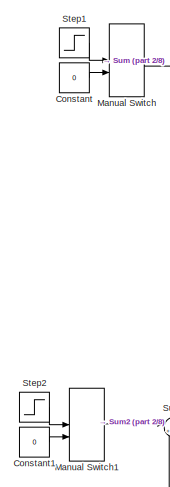
[diagram: root canvas - part 1/8, top left region]
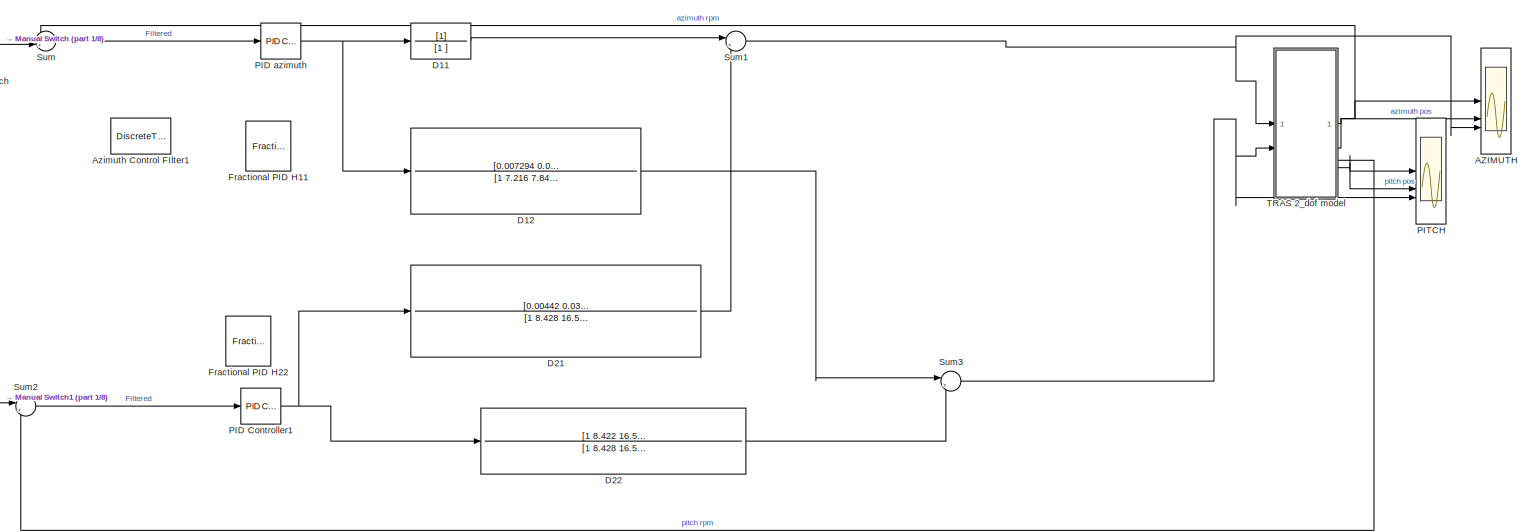
[diagram: root canvas - part 2/8, top left region]
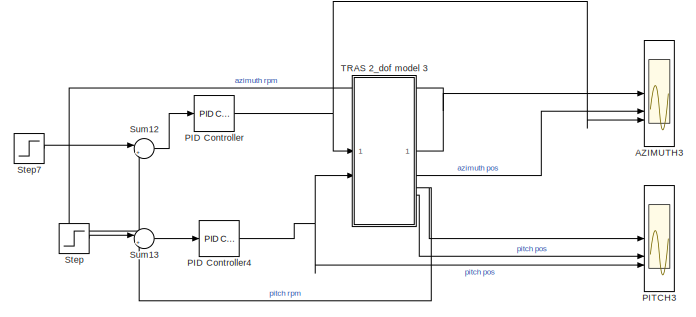
[diagram: root canvas - part 3/8, top right region]
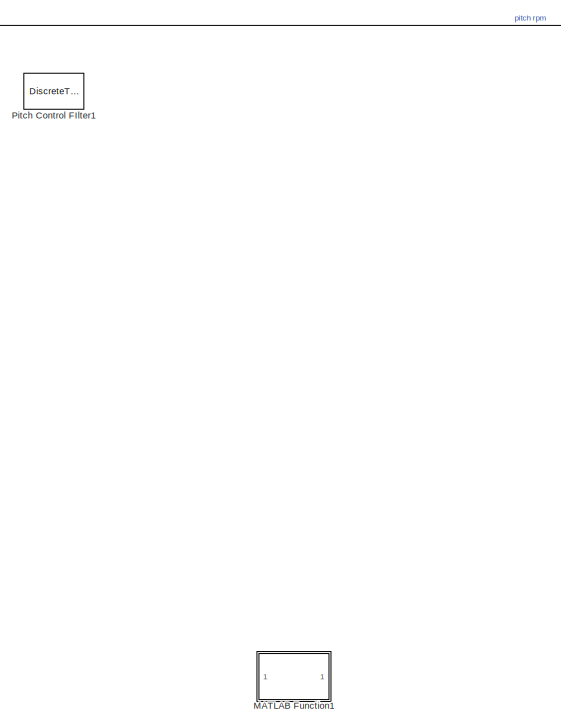
[diagram: root canvas - part 4/8, top left region]
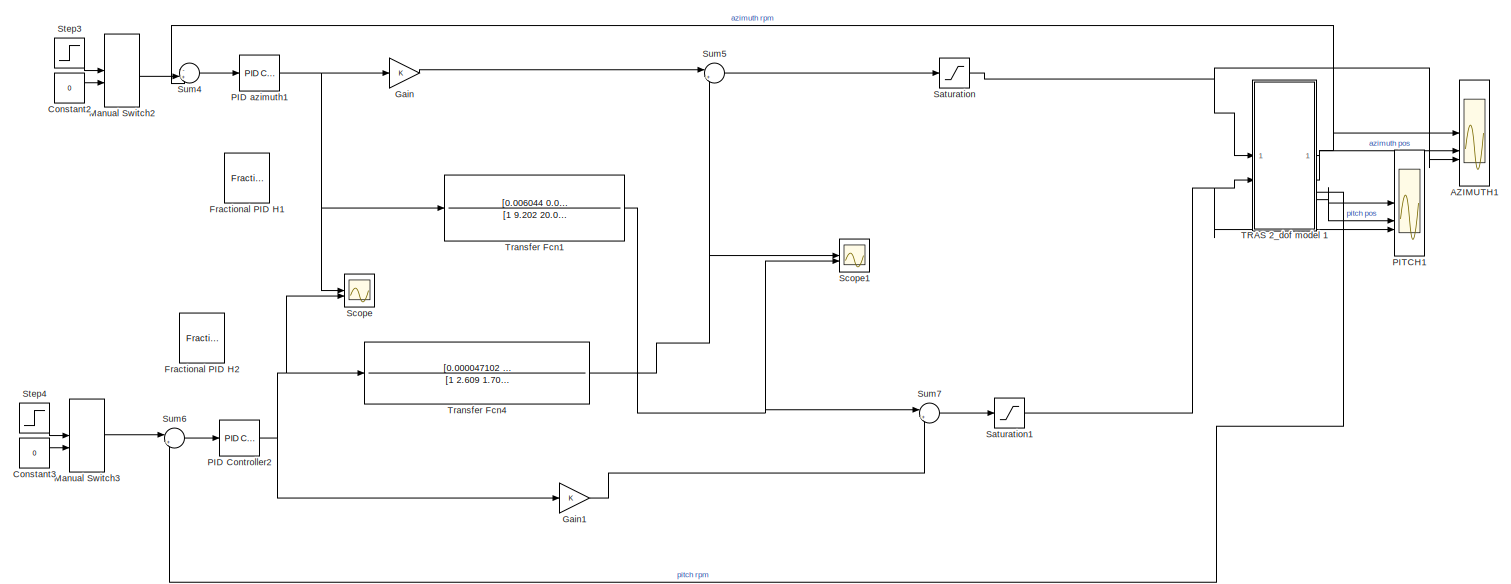
[diagram: root canvas - part 5/8, middle left region]
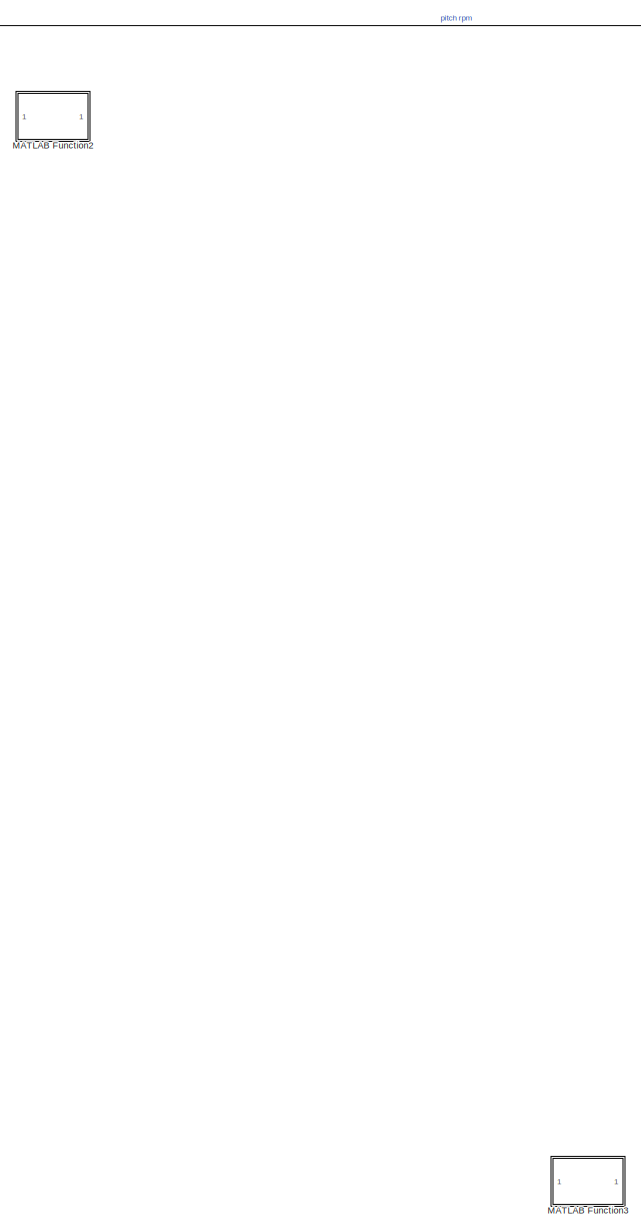
[diagram: root canvas - part 6/8, middle left region]
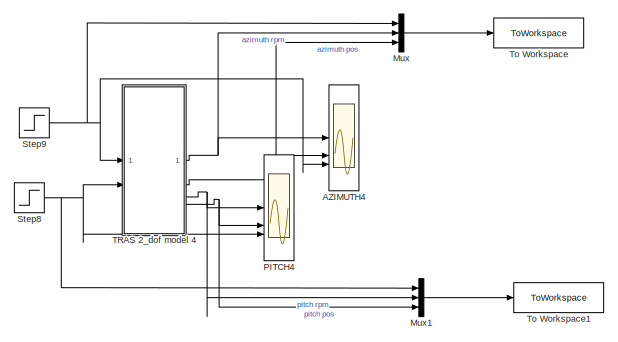
[diagram: root canvas - part 7/8, bottom right region]
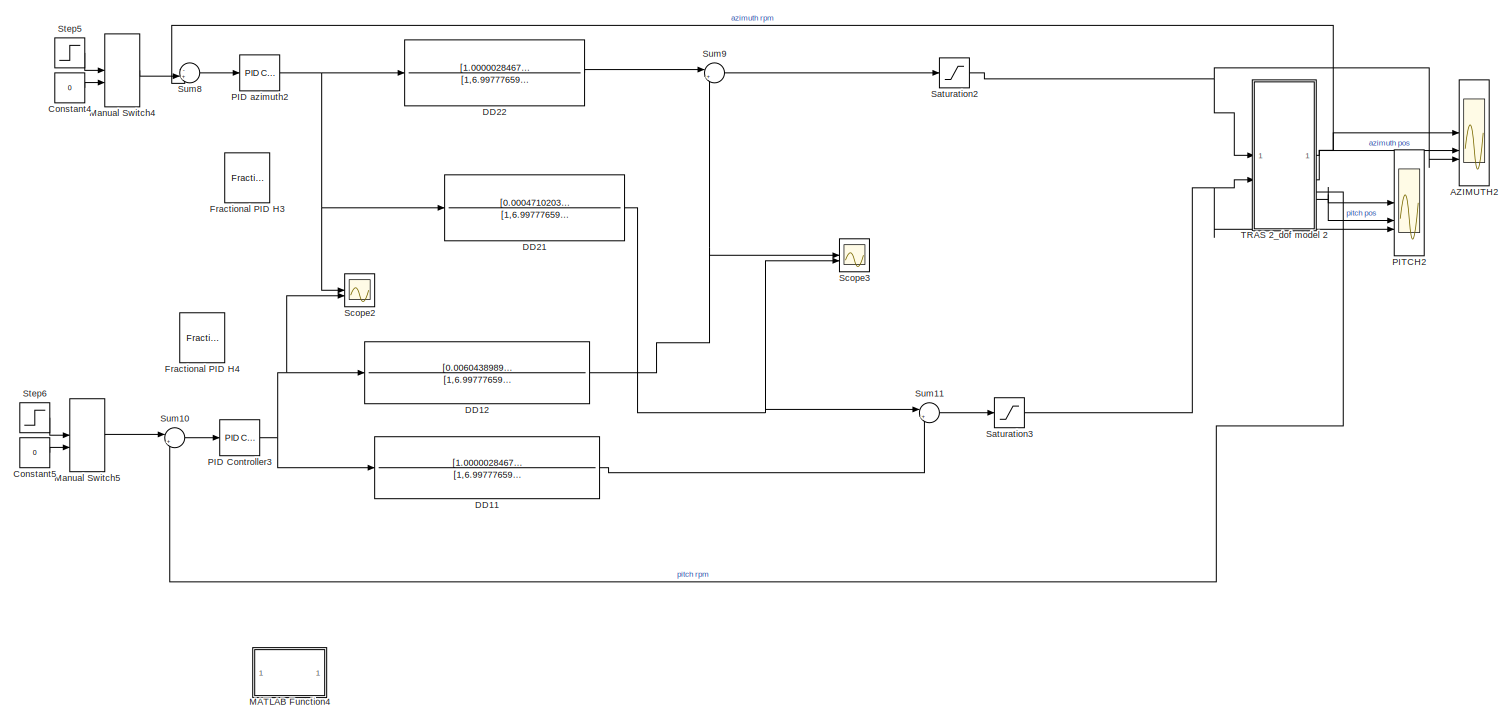
[diagram: root canvas - part 8/8, bottom left region]
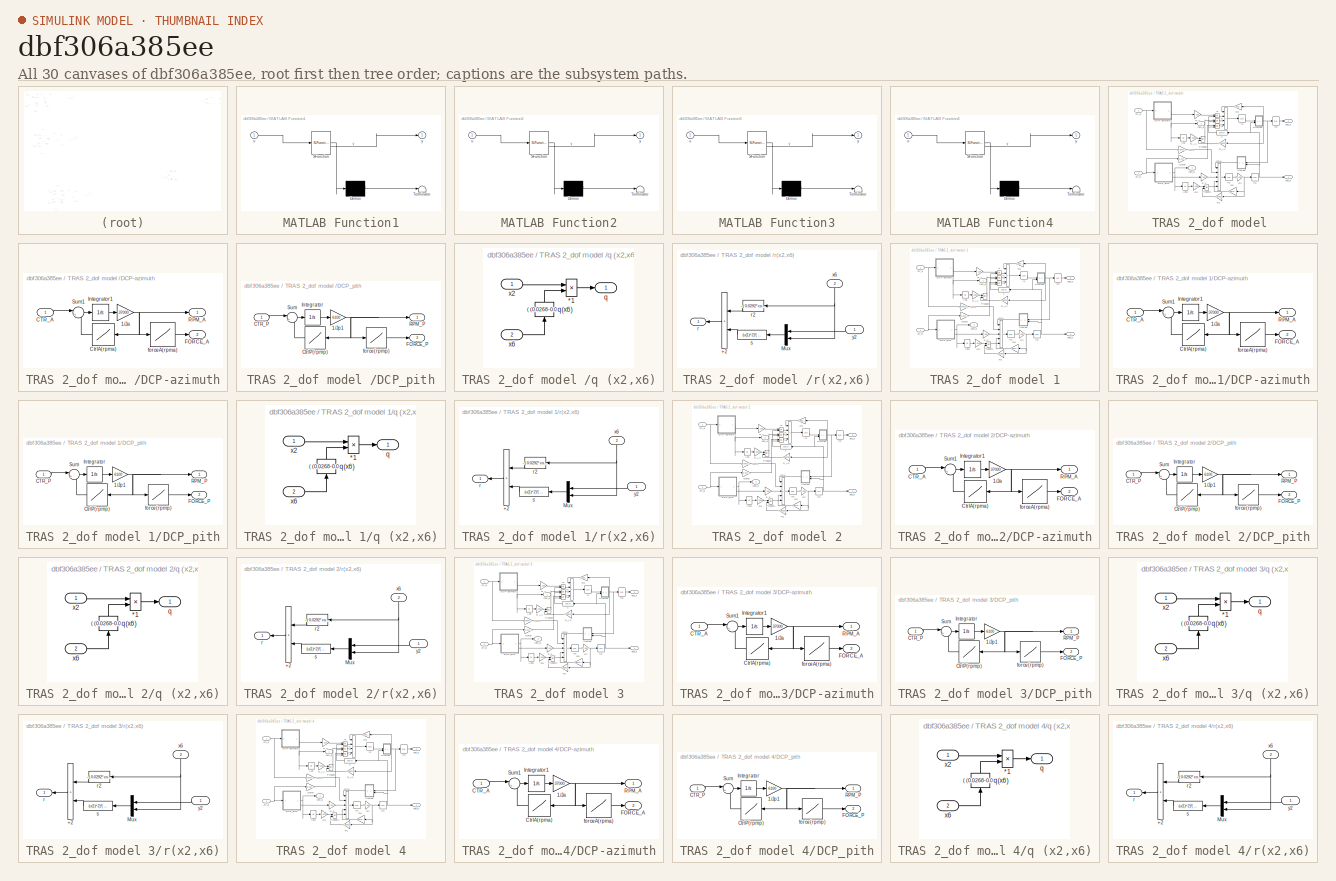
[diagram: thumbnail index - all 30 canvases of the model, root first then tree order]
MODEL mdl_dbf306a385ee
KIND model
CONFIG AbsTol = auto
CONFIG EnableMultiTasking = on
CONFIG FixedStep = .02
CONFIG MaxStep = auto
CONFIG MinStep = auto
CONFIG PreLoadFcn = load tras_char
CONFIG RelTol = 1e-3
CONFIG SampleTimeConstraint = Unconstrained
CONFIG SolverName = VariableStepAuto
CONFIG StartTime = 0.0
CONFIG StopTime = 20
BLOCK [Scope] AZIMUTH
  Floating = off
  NumInputPorts = 3
  ScopeSpecificationString = Simulink.scopes.TimeScopeBlockCfg('CurrentConfiguration', extmgr.ConfigurationSet(extmgr.Configuration('Core','General UI',true),extmgr.Configuration('Core','Source UI',true),extmgr.Configuration('Sources','WiredSimulink',true,'DataLoggingSaveFormat','StructureWithTime','DataLoggingLimitDataPoints',true,'DataLoggingDecimation','1','DataLoggingDecimateData',true),extmgr.Configuration('Visuals','Tim...<+3344ch>
BLOCK [Scope] AZIMUTH1
  Floating = off
  NumInputPorts = 3
  ScopeSpecificationString = Simulink.scopes.TimeScopeBlockCfg('CurrentConfiguration', extmgr.ConfigurationSet(extmgr.Configuration('Core','General UI',true),extmgr.Configuration('Core','Source UI',true),extmgr.Configuration('Sources','WiredSimulink',true,'DataLoggingSaveFormat','StructureWithTime','DataLoggingLimitDataPoints',true,'DataLoggingDecimation','1','DataLoggingDecimateData',true,'DataLoggingVariableName','ScopeData...<+3386ch>
BLOCK [Scope] AZIMUTH2
  Floating = off
  NumInputPorts = 3
  ScopeSpecificationString = Simulink.scopes.TimeScopeBlockCfg('CurrentConfiguration', extmgr.ConfigurationSet(extmgr.Configuration('Core','General UI',true),extmgr.Configuration('Core','Source UI',true),extmgr.Configuration('Sources','WiredSimulink',true,'DataLoggingSaveFormat','StructureWithTime','DataLoggingLimitDataPoints',true,'DataLoggingDecimation','1','DataLoggingDecimateData',true,'DataLoggingVariableName','ScopeData...<+3384ch>
BLOCK [Scope] AZIMUTH3
  Floating = off
  NumInputPorts = 3
  ScopeSpecificationString = Simulink.scopes.TimeScopeBlockCfg('CurrentConfiguration', extmgr.ConfigurationSet(extmgr.Configuration('Core','General UI',true),extmgr.Configuration('Core','Source UI',true),extmgr.Configuration('Sources','WiredSimulink',true,'DataLoggingSaveFormat','StructureWithTime','DataLoggingLimitDataPoints',true,'DataLoggingDecimation','1','DataLoggingDecimateData',true,'DataLoggingVariableName','ScopeData...<+3383ch>
BLOCK [Scope] AZIMUTH4
  Floating = off
  NumInputPorts = 3
  ScopeSpecificationString = Simulink.scopes.TimeScopeBlockCfg('CurrentConfiguration', extmgr.ConfigurationSet(extmgr.Configuration('Core','General UI',true),extmgr.Configuration('Core','Source UI',true),extmgr.Configuration('Sources','WiredSimulink',true,'DataLoggingSaveFormat','StructureWithTime','DataLoggingLimitDataPoints',true,'DataLoggingDecimation','1','DataLoggingDecimateData',true,'DataLoggingVariableName','ScopeData...<+3373ch>
BLOCK [DiscreteTransferFcn] Azimuth Control FIlter1
  Denominator = [1.0000   -3.9845    6.4349   -5.2536    2.1651   -0.3599]*1e6
  InputPortMap = u0
  Numerator = [0.0598    0.2990    0.5980    0.5980    0.2990    0.0598] * 1e3
  SampleTime = 0.01
BLOCK [Constant] Constant
  Value = 0
BLOCK [Constant] Constant1
  Value = 0
BLOCK [Constant] Constant2
  Value = 0
BLOCK [Constant] Constant3
  Value = 0
BLOCK [Constant] Constant4
  Value = 0
BLOCK [Constant] Constant5
  Value = 0
BLOCK [TransferFcn] D11
  Denominator = [1 ]
BLOCK [TransferFcn] D12
  Denominator = [1 7.216 7.843]
  Numerator = [0.007294 0.0517 0.0517]
BLOCK [TransferFcn] D21
  Denominator = [1 8.428 16.59 9.507]
  Numerator = [0.00442 0.03131 0.05809 0.03227]
BLOCK [TransferFcn] D22
  Denominator = [1 8.428 16.59 9.507]
  Numerator = [1 8.422 16.54 9.451]
BLOCK [TransferFcn] DD11
  Denominator = [1,6.99777659725802,7.50512468468497]
  Numerator = [1.00000284679131,6.99779030125994,7.50513760323875]
BLOCK [TransferFcn] DD12
  Denominator = [1,6.99777659725803,7.50512468468505]
  Numerator = [0.00604389897710873,0.0157679645959730,0.0102823375259034]
BLOCK [TransferFcn] DD21
  Denominator = [1,6.99777659725802,7.50512468468497]
  Numerator = [0.000471020349710704,0.00433466168519442,0.00942932713768640]
BLOCK [TransferFcn] DD22
  Denominator = [1,6.99777659725803,7.50512468468505]
  Numerator = [1.00000284679131,6.99779030126001,7.50513760323899]
BLOCK [Reference] Fractional PID H1  REF=fod/Fractional PID  (lib defined in slx_5cb2d42c7bef)
controller
  SourceBlock = fod/Fractional PID\ncontroller
  SourceProductName = FOMCON Toolbox
  SourceType = Fractional PID
BLOCK [Reference] Fractional PID H11  REF=fod/Fractional PID  (lib defined in slx_5cb2d42c7bef)
controller
  SourceBlock = fod/Fractional PID\ncontroller
  SourceProductName = FOMCON Toolbox
  SourceType = Fractional PID
BLOCK [Reference] Fractional PID H2  REF=fod/Fractional PID  (lib defined in slx_5cb2d42c7bef)
controller
  SourceBlock = fod/Fractional PID\ncontroller
  SourceProductName = FOMCON Toolbox
  SourceType = Fractional PID
BLOCK [Reference] Fractional PID H22  REF=fod/Fractional PID  (lib defined in slx_5cb2d42c7bef)
controller
  SourceBlock = fod/Fractional PID\ncontroller
  SourceProductName = FOMCON Toolbox
  SourceType = Fractional PID
BLOCK [Reference] Fractional PID H3  REF=fod/Fractional PID  (lib defined in slx_5cb2d42c7bef)
controller
  SourceBlock = fod/Fractional PID\ncontroller
  SourceProductName = FOMCON Toolbox
  SourceType = Fractional PID
BLOCK [Reference] Fractional PID H4  REF=fod/Fractional PID  (lib defined in slx_5cb2d42c7bef)
controller
  SourceBlock = fod/Fractional PID\ncontroller
  SourceProductName = FOMCON Toolbox
  SourceType = Fractional PID
BLOCK [Gain] Gain
BLOCK [Gain] Gain1
BLOCK [SubSystem] MATLAB Function1
  ErrorFcn = Stateflow.Translate.translate
  NameLocation = top
  PermitHierarchicalResolution = ExplicitOnly
  SFBlockType = MATLAB Function
  TreatAsAtomicUnit = on
BLOCK [Demux] MATLAB Function1/ Demux 
  Outputs = 1
BLOCK [S-Function] MATLAB Function1/ SFunction 
  EnableBusSupport = on
  FunctionName = sf_sfun
  PortCounts = [1 2]
  SFcnIsStateOwnerBlock = off
  SFunctionDeploymentMode = off
  Tag = Stateflow S-Function 1
BLOCK [Terminator] MATLAB Function1/ Terminator 
BLOCK [Inport] MATLAB Function1/u
BLOCK [Outport] MATLAB Function1/y
BLOCK [SubSystem] MATLAB Function2
  ErrorFcn = Stateflow.Translate.translate
  NameLocation = top
  PermitHierarchicalResolution = ExplicitOnly
  SFBlockType = MATLAB Function
  TreatAsAtomicUnit = on
BLOCK [Demux] MATLAB Function2/ Demux 
  Outputs = 1
BLOCK [S-Function] MATLAB Function2/ SFunction 
  EnableBusSupport = on
  FunctionName = sf_sfun
  PortCounts = [1 2]
  SFcnIsStateOwnerBlock = off
  SFunctionDeploymentMode = off
  Tag = Stateflow S-Function 3
BLOCK [Terminator] MATLAB Function2/ Terminator 
BLOCK [Inport] MATLAB Function2/u
BLOCK [Outport] MATLAB Function2/y
BLOCK [SubSystem] MATLAB Function3
  ErrorFcn = Stateflow.Translate.translate
  NameLocation = top
  PermitHierarchicalResolution = ExplicitOnly
  SFBlockType = MATLAB Function
  TreatAsAtomicUnit = on
BLOCK [Demux] MATLAB Function3/ Demux 
  Outputs = 1
BLOCK [S-Function] MATLAB Function3/ SFunction 
  EnableBusSupport = on
  FunctionName = sf_sfun
  PortCounts = [1 2]
  SFcnIsStateOwnerBlock = off
  SFunctionDeploymentMode = off
  Tag = Stateflow S-Function 2
BLOCK [Terminator] MATLAB Function3/ Terminator 
BLOCK [Inport] MATLAB Function3/u
BLOCK [Outport] MATLAB Function3/y
BLOCK [SubSystem] MATLAB Function4
  ErrorFcn = Stateflow.Translate.translate
  NameLocation = top
  PermitHierarchicalResolution = ExplicitOnly
  SFBlockType = MATLAB Function
  TreatAsAtomicUnit = on
BLOCK [Demux] MATLAB Function4/ Demux 
  Outputs = 1
BLOCK [S-Function] MATLAB Function4/ SFunction 
  EnableBusSupport = on
  FunctionName = sf_sfun
  PortCounts = [1 2]
  SFcnIsStateOwnerBlock = off
  SFunctionDeploymentMode = off
  Tag = Stateflow S-Function 4
BLOCK [Terminator] MATLAB Function4/ Terminator 
BLOCK [Inport] MATLAB Function4/u
BLOCK [Outport] MATLAB Function4/y
BLOCK [ManualSwitch] Manual Switch
  CurrentSetting = 0
BLOCK [ManualSwitch] Manual Switch1
BLOCK [ManualSwitch] Manual Switch2
BLOCK [ManualSwitch] Manual Switch3
  CurrentSetting = 0
BLOCK [ManualSwitch] Manual Switch4
  CurrentSetting = 0
BLOCK [ManualSwitch] Manual Switch5
BLOCK [Mux] Mux
  DisplayOption = bar
  Inputs = 3
BLOCK [Mux] Mux1
  DisplayOption = bar
  Inputs = 3
BLOCK [Reference] PID Controller  REF=slpidlib/PID Controller
  LibrarySourceBlock = simulink/Continuous/PID Controller
  SourceBlock = slpidlib/PID Controller
  SourceType = PID 1dof
BLOCK [Reference] PID Controller1  REF=slpidlib/PID Controller
  LibrarySourceBlock = simulink/Continuous/PID Controller
  SourceBlock = slpidlib/PID Controller
  SourceType = PID 1dof
BLOCK [Reference] PID Controller2  REF=slpidlib/PID Controller
  LibrarySourceBlock = simulink/Continuous/PID Controller
  SourceBlock = slpidlib/PID Controller
  SourceType = PID 1dof
BLOCK [Reference] PID Controller3  REF=slpidlib/PID Controller
  LibrarySourceBlock = simulink/Continuous/PID Controller
  SourceBlock = slpidlib/PID Controller
  SourceType = PID 1dof
BLOCK [Reference] PID Controller4  REF=slpidlib/PID Controller
  LibrarySourceBlock = simulink/Continuous/PID Controller
  SourceBlock = slpidlib/PID Controller
  SourceType = PID 1dof
BLOCK [Reference] PID azimuth  REF=slpidlib/PID Controller
  LibrarySourceBlock = simulink/Continuous/PID Controller
  SourceBlock = slpidlib/PID Controller
  SourceType = PID 1dof
BLOCK [Reference] PID azimuth1  REF=slpidlib/PID Controller
  LibrarySourceBlock = simulink/Continuous/PID Controller
  SourceBlock = slpidlib/PID Controller
  SourceType = PID 1dof
BLOCK [Reference] PID azimuth2  REF=slpidlib/PID Controller
  LibrarySourceBlock = simulink/Continuous/PID Controller
  SourceBlock = slpidlib/PID Controller
  SourceType = PID 1dof
BLOCK [Scope] PITCH
  Floating = off
  NumInputPorts = 3
  ScopeSpecificationString = Simulink.scopes.TimeScopeBlockCfg('CurrentConfiguration', extmgr.ConfigurationSet(extmgr.Configuration('Core','General UI',true),extmgr.Configuration('Core','Source UI',true),extmgr.Configuration('Sources','WiredSimulink',true,'DataLoggingVariableName','ScopeData1','DataLoggingSaveFormat','StructureWithTime','DataLoggingLimitDataPoints',true,'DataLoggingDecimation','1','DataLoggingDecimateData',tr...<+3369ch>
BLOCK [Scope] PITCH1
  Floating = off
  NumInputPorts = 3
  ScopeSpecificationString = Simulink.scopes.TimeScopeBlockCfg('CurrentConfiguration', extmgr.ConfigurationSet(extmgr.Configuration('Core','General UI',true),extmgr.Configuration('Core','Source UI',true),extmgr.Configuration('Sources','WiredSimulink',true,'DataLoggingVariableName','ScopeData3','DataLoggingSaveFormat','StructureWithTime','DataLoggingLimitDataPoints',true,'DataLoggingDecimation','1','DataLoggingDecimateData',tr...<+3296ch>
BLOCK [Scope] PITCH2
  Floating = off
  NumInputPorts = 3
  ScopeSpecificationString = Simulink.scopes.TimeScopeBlockCfg('CurrentConfiguration', extmgr.ConfigurationSet(extmgr.Configuration('Core','General UI',true),extmgr.Configuration('Core','Source UI',true),extmgr.Configuration('Sources','WiredSimulink',true,'DataLoggingVariableName','ScopeData2','DataLoggingSaveFormat','StructureWithTime','DataLoggingLimitDataPoints',true,'DataLoggingDecimation','1','DataLoggingDecimateData',tr...<+3262ch>
BLOCK [Scope] PITCH3
  Floating = off
  NumInputPorts = 3
  ScopeSpecificationString = Simulink.scopes.TimeScopeBlockCfg('CurrentConfiguration', extmgr.ConfigurationSet(extmgr.Configuration('Core','General UI',true),extmgr.Configuration('Core','Source UI',true),extmgr.Configuration('Sources','WiredSimulink',true,'DataLoggingVariableName','ScopeData6','DataLoggingSaveFormat','StructureWithTime','DataLoggingLimitDataPoints',true,'DataLoggingDecimation','1','DataLoggingDecimateData',tr...<+3262ch>
BLOCK [Scope] PITCH4
  Floating = off
  NumInputPorts = 3
  ScopeSpecificationString = Simulink.scopes.TimeScopeBlockCfg('CurrentConfiguration', extmgr.ConfigurationSet(extmgr.Configuration('Core','General UI',true),extmgr.Configuration('Core','Source UI',true),extmgr.Configuration('Sources','WiredSimulink',true,'DataLoggingVariableName','ScopeData2','DataLoggingSaveFormat','StructureWithTime','DataLoggingLimitDataPoints',true,'DataLoggingDecimation','1','DataLoggingDecimateData',tr...<+3255ch>
BLOCK [DiscreteTransferFcn] Pitch Control FIlter1
  Denominator = [1.0000   -3.9845    6.4349   -5.2536    2.1651   -0.3599]*1e6
  InputPortMap = u0
  Numerator = [0.0598    0.2990    0.5980    0.5980    0.2990    0.0598] * 1e3
  SampleTime = 0.01
BLOCK [Saturate] Saturation
  LowerLimit = -0.2
  UpperLimit = 1
BLOCK [Saturate] Saturation1
BLOCK [Saturate] Saturation2
  LowerLimit = -0.2
  UpperLimit = 1
BLOCK [Saturate] Saturation3
BLOCK [Scope] Scope
  Floating = off
  NumInputPorts = 2
  ScopeSpecificationString = Simulink.scopes.TimeScopeBlockCfg('CurrentConfiguration', extmgr.ConfigurationSet(extmgr.Configuration('Core','General UI',true),extmgr.Configuration('Core','Source UI',true),extmgr.Configuration('Sources','WiredSimulink',true,'DataLoggingVariableName','ScopeData4'),extmgr.Configuration('Visuals','Time Domain',true,'SerializedDisplays',{struct('MinYLimReal','0.001239','MaxYLimReal','0.001316','YLa...<+2151ch>
BLOCK [Scope] Scope1
  Floating = off
  NumInputPorts = 2
  ScopeSpecificationString = Simulink.scopes.TimeScopeBlockCfg('CurrentConfiguration', extmgr.ConfigurationSet(extmgr.Configuration('Core','General UI',true),extmgr.Configuration('Core','Source UI',true),extmgr.Configuration('Sources','WiredSimulink',true,'DataLoggingVariableName','ScopeData5'),extmgr.Configuration('Visuals','Time Domain',true,'SerializedDisplays',{struct('MinYLimReal','-0.00006','MaxYLimReal','0.00058','YLab...<+2174ch>
BLOCK [Scope] Scope2
  Floating = off
  NumInputPorts = 2
  ScopeSpecificationString = Simulink.scopes.TimeScopeBlockCfg('CurrentConfiguration', extmgr.ConfigurationSet(extmgr.Configuration('Core','General UI',true),extmgr.Configuration('Core','Source UI',true),extmgr.Configuration('Sources','WiredSimulink',true,'DataLoggingVariableName','ScopeData3'),extmgr.Configuration('Visuals','Time Domain',true,'SerializedDisplays',{struct('MinYLimReal','0.001239','MaxYLimReal','0.001316','YLa...<+2124ch>
BLOCK [Scope] Scope3
  Floating = off
  NumInputPorts = 2
  ScopeSpecificationString = Simulink.scopes.TimeScopeBlockCfg('CurrentConfiguration', extmgr.ConfigurationSet(extmgr.Configuration('Core','General UI',true),extmgr.Configuration('Core','Source UI',true),extmgr.Configuration('Sources','WiredSimulink',true,'DataLoggingVariableName','ScopeData4'),extmgr.Configuration('Visuals','Time Domain',true,'SerializedDisplays',{struct('MinYLimReal','-0.00006','MaxYLimReal','0.00058','YLab...<+2148ch>
BLOCK [Step] Step
  After = 10
  SampleTime = 0
  Time = 0
BLOCK [Step] Step1
  After = 10
  SampleTime = 0
  Time = 0
BLOCK [Step] Step2
  After = 10
  SampleTime = 0
  Time = 0
BLOCK [Step] Step3
  After = 10
  SampleTime = 0
  Time = 0
BLOCK [Step] Step4
  After = 10
  SampleTime = 0
  Time = 0
BLOCK [Step] Step5
  After = 10
  SampleTime = 0
  Time = 0
BLOCK [Step] Step6
  After = 10
  SampleTime = 0
  Time = 0
BLOCK [Step] Step7
  After = 0
  SampleTime = 0
  Time = 0
BLOCK [Step] Step8
  After = 0.1
  SampleTime = 0
  Time = 0
BLOCK [Step] Step9
  After = 0
  SampleTime = 0
  Time = 0
BLOCK [Sum] Sum
  Inputs = -+|
BLOCK [Sum] Sum1
  Inputs = |++
BLOCK [Sum] Sum10
  Inputs = |+-
BLOCK [Sum] Sum11
  Inputs = |++
BLOCK [Sum] Sum12
  Inputs = |+-
BLOCK [Sum] Sum13
  Inputs = |+-
BLOCK [Sum] Sum2
  Inputs = |+-
BLOCK [Sum] Sum3
  Inputs = |++
BLOCK [Sum] Sum4
  Inputs = -+|
BLOCK [Sum] Sum5
  Inputs = |++
BLOCK [Sum] Sum6
  Inputs = |+-
BLOCK [Sum] Sum7
  Inputs = |++
BLOCK [Sum] Sum8
  Inputs = -+|
BLOCK [Sum] Sum9
  Inputs = |++
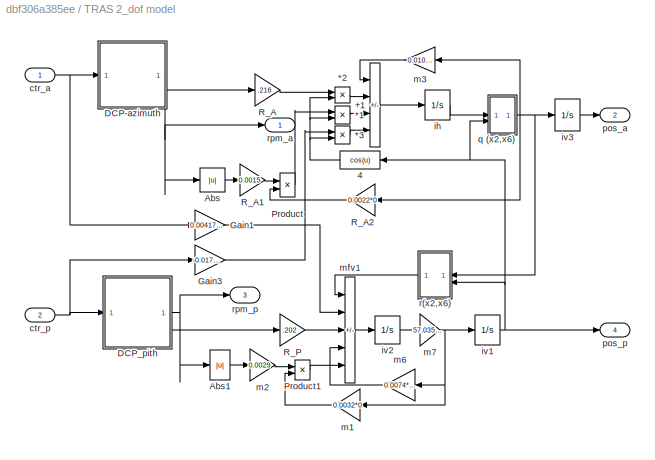
BLOCK [SubSystem] TRAS 2_dof model 
  NameLocation = top
BLOCK [Product] TRAS 2_dof model /*1
  InputSameDT = on
  OutDataTypeStr = Inherit: Same as first input
  SaturateOnIntegerOverflow = on
BLOCK [Product] TRAS 2_dof model /*2
  InputSameDT = on
  OutDataTypeStr = Inherit: Same as first input
  SaturateOnIntegerOverflow = on
BLOCK [Product] TRAS 2_dof model /*3
  InputSameDT = on
  OutDataTypeStr = Inherit: Same as first input
  SaturateOnIntegerOverflow = on
BLOCK [Sum] TRAS 2_dof model /+1
  IconShape = rectangular
  InputSameDT = on
  Inputs = -+--
  NameLocation = top
  OutDataTypeStr = Inherit: Same as first input
  SaturateOnIntegerOverflow = on
BLOCK [Fcn] TRAS 2_dof model /4
  Expr = cos(u)
  NameLocation = top
BLOCK [Abs] TRAS 2_dof model /Abs
BLOCK [Abs] TRAS 2_dof model /Abs1
BLOCK [SubSystem] TRAS 2_dof model /DCP-azimuth
  NameLocation = top
BLOCK [Gain] TRAS 2_dof model /DCP-azimuth/1//Ja
  Gain = 37000
  OutDataTypeStr = Inherit: Same as input
  ParamDataTypeStr = Inherit: Same as input
  SaturateOnIntegerOverflow = on
BLOCK [Inport] TRAS 2_dof model /DCP-azimuth/CTR_A
BLOCK [Lookup] TRAS 2_dof model /DCP-azimuth/CtrlA(rpma)
  InputValues = rpm_a
  Table = control_a
BLOCK [Outport] TRAS 2_dof model /DCP-azimuth/FORCE_A
  Port = 2
BLOCK [Integrator] TRAS 2_dof model /DCP-azimuth/Integrator1
BLOCK [Outport] TRAS 2_dof model /DCP-azimuth/RPM_A
BLOCK [Sum] TRAS 2_dof model /DCP-azimuth/Sum1
  InputSameDT = on
  Inputs = |+-
  OutDataTypeStr = Inherit: Same as first input
  SaturateOnIntegerOverflow = on
BLOCK [Lookup] TRAS 2_dof model /DCP-azimuth/forceA(rpma)
  InputValues = rpm_a
  NameLocation = top
  Table = force_a
BLOCK [SubSystem] TRAS 2_dof model /DCP_pith
BLOCK [Gain] TRAS 2_dof model /DCP_pith/1//Jp1
  Gain = 6100
  OutDataTypeStr = Inherit: Same as input
  ParamDataTypeStr = Inherit: Same as input
BLOCK [Inport] TRAS 2_dof model /DCP_pith/CTR_P
BLOCK [Lookup] TRAS 2_dof model /DCP_pith/CtrlP(rpmp)
  InputValues = rpm_p
  Table = control_p
BLOCK [Outport] TRAS 2_dof model /DCP_pith/FORCE_P
  Port = 2
BLOCK [Integrator] TRAS 2_dof model /DCP_pith/Integrator
BLOCK [Outport] TRAS 2_dof model /DCP_pith/RPM_P
BLOCK [Sum] TRAS 2_dof model /DCP_pith/Sum
  InputSameDT = on
  Inputs = |+-
  OutDataTypeStr = Inherit: Same as first input
  SaturateOnIntegerOverflow = on
BLOCK [Lookup] TRAS 2_dof model /DCP_pith/force(rpmp)
  InputValues = rpm_p
  NameLocation = top
  Table = force_p
BLOCK [Gain] TRAS 2_dof model /Gain1
  Gain = 0.00417495398545
  NameLocation = top
  OutDataTypeStr = Inherit: Same as input
  ParamDataTypeStr = Inherit: Same as input
  SaturateOnIntegerOverflow = on
BLOCK [Gain] TRAS 2_dof model /Gain3
  Gain = -0.01782003784180
  NameLocation = top
  OutDataTypeStr = Inherit: Same as input
  ParamDataTypeStr = Inherit: Same as input
  SaturateOnIntegerOverflow = on
BLOCK [Product] TRAS 2_dof model /Product
  InputSameDT = on
  OutDataTypeStr = Inherit: Same as first input
  SaturateOnIntegerOverflow = on
BLOCK [Product] TRAS 2_dof model /Product1
  OutDataTypeStr = Inherit: Same as first input
  SaturateOnIntegerOverflow = on
BLOCK [Gain] TRAS 2_dof model /R_A
  Gain = .216
  NameLocation = top
  OutDataTypeStr = Inherit: Same as input
  ParamDataTypeStr = Inherit: Same as input
BLOCK [Gain] TRAS 2_dof model /R_A1
  Gain = 0.0015
  NameLocation = top
  OutDataTypeStr = Inherit: Same as input
  ParamDataTypeStr = Inherit: Same as input
BLOCK [Gain] TRAS 2_dof model /R_A2
  Gain = 0.0022*0
  NameLocation = top
  OutDataTypeStr = Inherit: Same as input
  ParamDataTypeStr = Inherit: Same as input
BLOCK [Gain] TRAS 2_dof model /R_P
  Gain = .202
  OutDataTypeStr = Inherit: Same as input
  ParamDataTypeStr = Inherit: Same as input
BLOCK [Inport] TRAS 2_dof model /ctr_a
BLOCK [Inport] TRAS 2_dof model /ctr_p
  Port = 2
BLOCK [Integrator] TRAS 2_dof model /ih
  LowerSaturationLimit = -10
  UpperSaturationLimit = 10
BLOCK [Integrator] TRAS 2_dof model /iv1
  LimitOutput = on
  LowerSaturationLimit = -pi/2
  NameLocation = top
  UpperSaturationLimit = pi/2
BLOCK [Integrator] TRAS 2_dof model /iv2
  LowerSaturationLimit = -pi
  NameLocation = top
  UpperSaturationLimit = pi
BLOCK [Integrator] TRAS 2_dof model /iv3
  LimitOutput = on
  LowerSaturationLimit = -6
  NameLocation = top
  UpperSaturationLimit = 6
BLOCK [Gain] TRAS 2_dof model /m1
  Gain = 0.0032*0
  NameLocation = top
  OutDataTypeStr = Inherit: Same as input
  ParamDataTypeStr = Inherit: Same as input
  SaturateOnIntegerOverflow = on
BLOCK [Gain] TRAS 2_dof model /m2
  Gain = 0.0029
  NameLocation = top
  OutDataTypeStr = Inherit: Same as input
  ParamDataTypeStr = Inherit: Same as input
  SaturateOnIntegerOverflow = on
BLOCK [Gain] TRAS 2_dof model /m3
  Gain = 0.0108*0.4935*1.1051
  NameLocation = top
  OutDataTypeStr = Inherit: Same as input
  ParamDataTypeStr = Inherit: Same as input
BLOCK [Gain] TRAS 2_dof model /m6
  Gain = 0.0074*1.7175
  OutDataTypeStr = Inherit: Same as input
  ParamDataTypeStr = Inherit: Same as input
BLOCK [Gain] TRAS 2_dof model /m7
  Gain = 57.0357*0.5833
  NameLocation = top
  OutDataTypeStr = Inherit: Same as input
  ParamDataTypeStr = Inherit: Same as input
  SaturateOnIntegerOverflow = on
BLOCK [Sum] TRAS 2_dof model /mfv1
  IconShape = rectangular
  InputSameDT = on
  Inputs = +++--
  NameLocation = top
  OutDataTypeStr = Inherit: Same as first input
  SaturateOnIntegerOverflow = on
BLOCK [Outport] TRAS 2_dof model /pos_a
  Port = 2
BLOCK [Outport] TRAS 2_dof model /pos_p
  Port = 4
BLOCK [SubSystem] TRAS 2_dof model /q (x2,x6)
BLOCK [Fcn] TRAS 2_dof model /q (x2,x6)/ q(x6)
  Expr = ( (0.0268-0.00300962066650)*cos(u)^2) +0.00300962066650
  NameLocation = left
BLOCK [Product] TRAS 2_dof model /q (x2,x6)/*1
  InputSameDT = on
  Inputs = */
  OutDataTypeStr = Inherit: Same as first input
  SaturateOnIntegerOverflow = on
BLOCK [Outport] TRAS 2_dof model /q (x2,x6)/q
BLOCK [Inport] TRAS 2_dof model /q (x2,x6)/x2
BLOCK [Inport] TRAS 2_dof model /q (x2,x6)/x6
  Port = 2
BLOCK [SubSystem] TRAS 2_dof model /r(x2,x6)
BLOCK [Sum] TRAS 2_dof model /r(x2,x6)/+2
  IconShape = rectangular
  InputSameDT = on
  OutDataTypeStr = Inherit: Same as first input
  SaturateOnIntegerOverflow = on
BLOCK [Mux] TRAS 2_dof model /r(x2,x6)/Mux
  DisplayOption = bar
  Inputs = 2
  NameLocation = top
BLOCK [Outport] TRAS 2_dof model /r(x2,x6)/r
BLOCK [Fcn] TRAS 2_dof model /r(x2,x6)/r2
  Expr = - ( 0.0292*cos(u)+ 0.0546*sin(u))*1.7143
BLOCK [Fcn] TRAS 2_dof model /r(x2,x6)/s
  Expr = (u(1)^2)*(     -0.07389953104162*  0.28753198180218*sin(u(2))*cos(u(2)))
BLOCK [Inport] TRAS 2_dof model /r(x2,x6)/x6
  NameLocation = right
  Port = 2
BLOCK [Inport] TRAS 2_dof model /r(x2,x6)/y2
BLOCK [Outport] TRAS 2_dof model /rpm_a
BLOCK [Outport] TRAS 2_dof model /rpm_p
  Port = 3
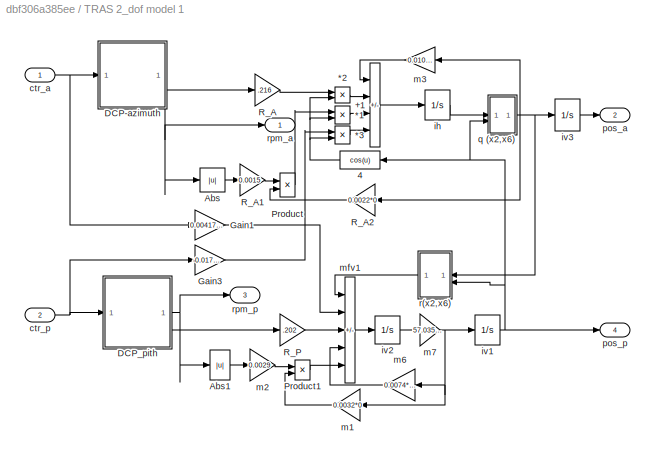
BLOCK [SubSystem] TRAS 2_dof model 1
  NameLocation = top
BLOCK [Product] TRAS 2_dof model 1/*1
  InputSameDT = on
  OutDataTypeStr = Inherit: Same as first input
  SaturateOnIntegerOverflow = on
BLOCK [Product] TRAS 2_dof model 1/*2
  InputSameDT = on
  OutDataTypeStr = Inherit: Same as first input
  SaturateOnIntegerOverflow = on
BLOCK [Product] TRAS 2_dof model 1/*3
  InputSameDT = on
  OutDataTypeStr = Inherit: Same as first input
  SaturateOnIntegerOverflow = on
BLOCK [Sum] TRAS 2_dof model 1/+1
  IconShape = rectangular
  InputSameDT = on
  Inputs = -+--
  NameLocation = top
  OutDataTypeStr = Inherit: Same as first input
  SaturateOnIntegerOverflow = on
BLOCK [Fcn] TRAS 2_dof model 1/4
  Expr = cos(u)
  NameLocation = top
BLOCK [Abs] TRAS 2_dof model 1/Abs
BLOCK [Abs] TRAS 2_dof model 1/Abs1
BLOCK [SubSystem] TRAS 2_dof model 1/DCP-azimuth
  NameLocation = top
BLOCK [Gain] TRAS 2_dof model 1/DCP-azimuth/1//Ja
  Gain = 37000
  OutDataTypeStr = Inherit: Same as input
  ParamDataTypeStr = Inherit: Same as input
  SaturateOnIntegerOverflow = on
BLOCK [Inport] TRAS 2_dof model 1/DCP-azimuth/CTR_A
BLOCK [Lookup] TRAS 2_dof model 1/DCP-azimuth/CtrlA(rpma)
  InputValues = rpm_a
  Table = control_a
BLOCK [Outport] TRAS 2_dof model 1/DCP-azimuth/FORCE_A
  Port = 2
BLOCK [Integrator] TRAS 2_dof model 1/DCP-azimuth/Integrator1
BLOCK [Outport] TRAS 2_dof model 1/DCP-azimuth/RPM_A
BLOCK [Sum] TRAS 2_dof model 1/DCP-azimuth/Sum1
  InputSameDT = on
  Inputs = |+-
  OutDataTypeStr = Inherit: Same as first input
  SaturateOnIntegerOverflow = on
BLOCK [Lookup] TRAS 2_dof model 1/DCP-azimuth/forceA(rpma)
  InputValues = rpm_a
  NameLocation = top
  Table = force_a
BLOCK [SubSystem] TRAS 2_dof model 1/DCP_pith
BLOCK [Gain] TRAS 2_dof model 1/DCP_pith/1//Jp1
  Gain = 6100
  OutDataTypeStr = Inherit: Same as input
  ParamDataTypeStr = Inherit: Same as input
BLOCK [Inport] TRAS 2_dof model 1/DCP_pith/CTR_P
BLOCK [Lookup] TRAS 2_dof model 1/DCP_pith/CtrlP(rpmp)
  InputValues = rpm_p
  Table = control_p
BLOCK [Outport] TRAS 2_dof model 1/DCP_pith/FORCE_P
  Port = 2
BLOCK [Integrator] TRAS 2_dof model 1/DCP_pith/Integrator
BLOCK [Outport] TRAS 2_dof model 1/DCP_pith/RPM_P
BLOCK [Sum] TRAS 2_dof model 1/DCP_pith/Sum
  InputSameDT = on
  Inputs = |+-
  OutDataTypeStr = Inherit: Same as first input
  SaturateOnIntegerOverflow = on
BLOCK [Lookup] TRAS 2_dof model 1/DCP_pith/force(rpmp)
  InputValues = rpm_p
  NameLocation = top
  Table = force_p
BLOCK [Gain] TRAS 2_dof model 1/Gain1
  Gain = 0.00417495398545
  NameLocation = top
  OutDataTypeStr = Inherit: Same as input
  ParamDataTypeStr = Inherit: Same as input
  SaturateOnIntegerOverflow = on
BLOCK [Gain] TRAS 2_dof model 1/Gain3
  Gain = -0.01782003784180
  NameLocation = top
  OutDataTypeStr = Inherit: Same as input
  ParamDataTypeStr = Inherit: Same as input
  SaturateOnIntegerOverflow = on
BLOCK [Product] TRAS 2_dof model 1/Product
  InputSameDT = on
  OutDataTypeStr = Inherit: Same as first input
  SaturateOnIntegerOverflow = on
BLOCK [Product] TRAS 2_dof model 1/Product1
  OutDataTypeStr = Inherit: Same as first input
  SaturateOnIntegerOverflow = on
BLOCK [Gain] TRAS 2_dof model 1/R_A
  Gain = .216
  NameLocation = top
  OutDataTypeStr = Inherit: Same as input
  ParamDataTypeStr = Inherit: Same as input
BLOCK [Gain] TRAS 2_dof model 1/R_A1
  Gain = 0.0015
  NameLocation = top
  OutDataTypeStr = Inherit: Same as input
  ParamDataTypeStr = Inherit: Same as input
BLOCK [Gain] TRAS 2_dof model 1/R_A2
  Gain = 0.0022*0
  NameLocation = top
  OutDataTypeStr = Inherit: Same as input
  ParamDataTypeStr = Inherit: Same as input
BLOCK [Gain] TRAS 2_dof model 1/R_P
  Gain = .202
  OutDataTypeStr = Inherit: Same as input
  ParamDataTypeStr = Inherit: Same as input
BLOCK [Inport] TRAS 2_dof model 1/ctr_a
BLOCK [Inport] TRAS 2_dof model 1/ctr_p
  Port = 2
BLOCK [Integrator] TRAS 2_dof model 1/ih
  LowerSaturationLimit = -10
  UpperSaturationLimit = 10
BLOCK [Integrator] TRAS 2_dof model 1/iv1
  LimitOutput = on
  LowerSaturationLimit = -pi/2
  NameLocation = top
  UpperSaturationLimit = pi/2
BLOCK [Integrator] TRAS 2_dof model 1/iv2
  LowerSaturationLimit = -pi
  NameLocation = top
  UpperSaturationLimit = pi
BLOCK [Integrator] TRAS 2_dof model 1/iv3
  LimitOutput = on
  LowerSaturationLimit = -6
  NameLocation = top
  UpperSaturationLimit = 6
BLOCK [Gain] TRAS 2_dof model 1/m1
  Gain = 0.0032*0
  NameLocation = top
  OutDataTypeStr = Inherit: Same as input
  ParamDataTypeStr = Inherit: Same as input
  SaturateOnIntegerOverflow = on
BLOCK [Gain] TRAS 2_dof model 1/m2
  Gain = 0.0029
  NameLocation = top
  OutDataTypeStr = Inherit: Same as input
  ParamDataTypeStr = Inherit: Same as input
  SaturateOnIntegerOverflow = on
BLOCK [Gain] TRAS 2_dof model 1/m3
  Gain = 0.0108*0.4935*1.1051
  NameLocation = top
  OutDataTypeStr = Inherit: Same as input
  ParamDataTypeStr = Inherit: Same as input
BLOCK [Gain] TRAS 2_dof model 1/m6
  Gain = 0.0074*1.7175
  OutDataTypeStr = Inherit: Same as input
  ParamDataTypeStr = Inherit: Same as input
BLOCK [Gain] TRAS 2_dof model 1/m7
  Gain = 57.0357*0.5833
  NameLocation = top
  OutDataTypeStr = Inherit: Same as input
  ParamDataTypeStr = Inherit: Same as input
  SaturateOnIntegerOverflow = on
BLOCK [Sum] TRAS 2_dof model 1/mfv1
  IconShape = rectangular
  InputSameDT = on
  Inputs = +++--
  NameLocation = top
  OutDataTypeStr = Inherit: Same as first input
  SaturateOnIntegerOverflow = on
BLOCK [Outport] TRAS 2_dof model 1/pos_a
  Port = 2
BLOCK [Outport] TRAS 2_dof model 1/pos_p
  Port = 4
BLOCK [SubSystem] TRAS 2_dof model 1/q (x2,x6)
BLOCK [Fcn] TRAS 2_dof model 1/q (x2,x6)/ q(x6)
  Expr = ( (0.0268-0.00300962066650)*cos(u)^2) +0.00300962066650
  NameLocation = left
BLOCK [Product] TRAS 2_dof model 1/q (x2,x6)/*1
  InputSameDT = on
  Inputs = */
  OutDataTypeStr = Inherit: Same as first input
  SaturateOnIntegerOverflow = on
BLOCK [Outport] TRAS 2_dof model 1/q (x2,x6)/q
BLOCK [Inport] TRAS 2_dof model 1/q (x2,x6)/x2
BLOCK [Inport] TRAS 2_dof model 1/q (x2,x6)/x6
  Port = 2
BLOCK [SubSystem] TRAS 2_dof model 1/r(x2,x6)
BLOCK [Sum] TRAS 2_dof model 1/r(x2,x6)/+2
  IconShape = rectangular
  InputSameDT = on
  OutDataTypeStr = Inherit: Same as first input
  SaturateOnIntegerOverflow = on
BLOCK [Mux] TRAS 2_dof model 1/r(x2,x6)/Mux
  DisplayOption = bar
  Inputs = 2
  NameLocation = top
BLOCK [Outport] TRAS 2_dof model 1/r(x2,x6)/r
BLOCK [Fcn] TRAS 2_dof model 1/r(x2,x6)/r2
  Expr = - ( 0.0292*cos(u)+ 0.0546*sin(u))*1.7143
BLOCK [Fcn] TRAS 2_dof model 1/r(x2,x6)/s
  Expr = (u(1)^2)*(     -0.07389953104162*  0.28753198180218*sin(u(2))*cos(u(2)))
BLOCK [Inport] TRAS 2_dof model 1/r(x2,x6)/x6
  NameLocation = right
  Port = 2
BLOCK [Inport] TRAS 2_dof model 1/r(x2,x6)/y2
BLOCK [Outport] TRAS 2_dof model 1/rpm_a
BLOCK [Outport] TRAS 2_dof model 1/rpm_p
  Port = 3
BLOCK [SubSystem] TRAS 2_dof model 2
  NameLocation = top
BLOCK [Product] TRAS 2_dof model 2/*1
  InputSameDT = on
  OutDataTypeStr = Inherit: Same as first input
  SaturateOnIntegerOverflow = on
BLOCK [Product] TRAS 2_dof model 2/*2
  InputSameDT = on
  OutDataTypeStr = Inherit: Same as first input
  SaturateOnIntegerOverflow = on
BLOCK [Product] TRAS 2_dof model 2/*3
  InputSameDT = on
  OutDataTypeStr = Inherit: Same as first input
  SaturateOnIntegerOverflow = on
BLOCK [Sum] TRAS 2_dof model 2/+1
  IconShape = rectangular
  InputSameDT = on
  Inputs = -+--
  NameLocation = top
  OutDataTypeStr = Inherit: Same as first input
  SaturateOnIntegerOverflow = on
BLOCK [Fcn] TRAS 2_dof model 2/4
  Expr = cos(u)
  NameLocation = top
BLOCK [Abs] TRAS 2_dof model 2/Abs
BLOCK [Abs] TRAS 2_dof model 2/Abs1
BLOCK [SubSystem] TRAS 2_dof model 2/DCP-azimuth
  NameLocation = top
BLOCK [Gain] TRAS 2_dof model 2/DCP-azimuth/1//Ja
  Gain = 37000
  OutDataTypeStr = Inherit: Same as input
  ParamDataTypeStr = Inherit: Same as input
  SaturateOnIntegerOverflow = on
BLOCK [Inport] TRAS 2_dof model 2/DCP-azimuth/CTR_A
BLOCK [Lookup] TRAS 2_dof model 2/DCP-azimuth/CtrlA(rpma)
  InputValues = rpm_a
  Table = control_a
BLOCK [Outport] TRAS 2_dof model 2/DCP-azimuth/FORCE_A
  Port = 2
BLOCK [Integrator] TRAS 2_dof model 2/DCP-azimuth/Integrator1
BLOCK [Outport] TRAS 2_dof model 2/DCP-azimuth/RPM_A
BLOCK [Sum] TRAS 2_dof model 2/DCP-azimuth/Sum1
  InputSameDT = on
  Inputs = |+-
  OutDataTypeStr = Inherit: Same as first input
  SaturateOnIntegerOverflow = on
BLOCK [Lookup] TRAS 2_dof model 2/DCP-azimuth/forceA(rpma)
  InputValues = rpm_a
  NameLocation = top
  Table = force_a
BLOCK [SubSystem] TRAS 2_dof model 2/DCP_pith
BLOCK [Gain] TRAS 2_dof model 2/DCP_pith/1//Jp1
  Gain = 6100
  OutDataTypeStr = Inherit: Same as input
  ParamDataTypeStr = Inherit: Same as input
BLOCK [Inport] TRAS 2_dof model 2/DCP_pith/CTR_P
BLOCK [Lookup] TRAS 2_dof model 2/DCP_pith/CtrlP(rpmp)
  InputValues = rpm_p
  Table = control_p
BLOCK [Outport] TRAS 2_dof model 2/DCP_pith/FORCE_P
  Port = 2
BLOCK [Integrator] TRAS 2_dof model 2/DCP_pith/Integrator
BLOCK [Outport] TRAS 2_dof model 2/DCP_pith/RPM_P
BLOCK [Sum] TRAS 2_dof model 2/DCP_pith/Sum
  InputSameDT = on
  Inputs = |+-
  OutDataTypeStr = Inherit: Same as first input
  SaturateOnIntegerOverflow = on
BLOCK [Lookup] TRAS 2_dof model 2/DCP_pith/force(rpmp)
  InputValues = rpm_p
  NameLocation = top
  Table = force_p
BLOCK [Gain] TRAS 2_dof model 2/Gain1
  Gain = 0.00417495398545
  NameLocation = top
  OutDataTypeStr = Inherit: Same as input
  ParamDataTypeStr = Inherit: Same as input
  SaturateOnIntegerOverflow = on
BLOCK [Gain] TRAS 2_dof model 2/Gain3
  Gain = -0.01782003784180
  NameLocation = top
  OutDataTypeStr = Inherit: Same as input
  ParamDataTypeStr = Inherit: Same as input
  SaturateOnIntegerOverflow = on
BLOCK [Product] TRAS 2_dof model 2/Product
  InputSameDT = on
  OutDataTypeStr = Inherit: Same as first input
  SaturateOnIntegerOverflow = on
BLOCK [Product] TRAS 2_dof model 2/Product1
  OutDataTypeStr = Inherit: Same as first input
  SaturateOnIntegerOverflow = on
BLOCK [Gain] TRAS 2_dof model 2/R_A
  Gain = .216
  NameLocation = top
  OutDataTypeStr = Inherit: Same as input
  ParamDataTypeStr = Inherit: Same as input
BLOCK [Gain] TRAS 2_dof model 2/R_A1
  Gain = 0.0015
  NameLocation = top
  OutDataTypeStr = Inherit: Same as input
  ParamDataTypeStr = Inherit: Same as input
BLOCK [Gain] TRAS 2_dof model 2/R_A2
  Gain = 0.0022*0
  NameLocation = top
  OutDataTypeStr = Inherit: Same as input
  ParamDataTypeStr = Inherit: Same as input
BLOCK [Gain] TRAS 2_dof model 2/R_P
  Gain = .202
  OutDataTypeStr = Inherit: Same as input
  ParamDataTypeStr = Inherit: Same as input
BLOCK [Inport] TRAS 2_dof model 2/ctr_a
BLOCK [Inport] TRAS 2_dof model 2/ctr_p
  Port = 2
BLOCK [Integrator] TRAS 2_dof model 2/ih
  LowerSaturationLimit = -10
  UpperSaturationLimit = 10
BLOCK [Integrator] TRAS 2_dof model 2/iv1
  LimitOutput = on
  LowerSaturationLimit = -pi/2
  NameLocation = top
  UpperSaturationLimit = pi/2
BLOCK [Integrator] TRAS 2_dof model 2/iv2
  LowerSaturationLimit = -pi
  NameLocation = top
  UpperSaturationLimit = pi
BLOCK [Integrator] TRAS 2_dof model 2/iv3
  LimitOutput = on
  LowerSaturationLimit = -6
  NameLocation = top
  UpperSaturationLimit = 6
BLOCK [Gain] TRAS 2_dof model 2/m1
  Gain = 0.0032*0
  NameLocation = top
  OutDataTypeStr = Inherit: Same as input
  ParamDataTypeStr = Inherit: Same as input
  SaturateOnIntegerOverflow = on
BLOCK [Gain] TRAS 2_dof model 2/m2
  Gain = 0.0029
  NameLocation = top
  OutDataTypeStr = Inherit: Same as input
  ParamDataTypeStr = Inherit: Same as input
  SaturateOnIntegerOverflow = on
BLOCK [Gain] TRAS 2_dof model 2/m3
  Gain = 0.0108*0.4935*1.1051
  NameLocation = top
  OutDataTypeStr = Inherit: Same as input
  ParamDataTypeStr = Inherit: Same as input
BLOCK [Gain] TRAS 2_dof model 2/m6
  Gain = 0.0074*1.7175
  OutDataTypeStr = Inherit: Same as input
  ParamDataTypeStr = Inherit: Same as input
BLOCK [Gain] TRAS 2_dof model 2/m7
  Gain = 57.0357*0.5833
  NameLocation = top
  OutDataTypeStr = Inherit: Same as input
  ParamDataTypeStr = Inherit: Same as input
  SaturateOnIntegerOverflow = on
BLOCK [Sum] TRAS 2_dof model 2/mfv1
  IconShape = rectangular
  InputSameDT = on
  Inputs = +++--
  NameLocation = top
  OutDataTypeStr = Inherit: Same as first input
  SaturateOnIntegerOverflow = on
BLOCK [Outport] TRAS 2_dof model 2/pos_a
  Port = 2
BLOCK [Outport] TRAS 2_dof model 2/pos_p
  Port = 4
BLOCK [SubSystem] TRAS 2_dof model 2/q (x2,x6)
BLOCK [Fcn] TRAS 2_dof model 2/q (x2,x6)/ q(x6)
  Expr = ( (0.0268-0.00300962066650)*cos(u)^2) +0.00300962066650
  NameLocation = left
BLOCK [Product] TRAS 2_dof model 2/q (x2,x6)/*1
  InputSameDT = on
  Inputs = */
  OutDataTypeStr = Inherit: Same as first input
  SaturateOnIntegerOverflow = on
BLOCK [Outport] TRAS 2_dof model 2/q (x2,x6)/q
BLOCK [Inport] TRAS 2_dof model 2/q (x2,x6)/x2
BLOCK [Inport] TRAS 2_dof model 2/q (x2,x6)/x6
  Port = 2
BLOCK [SubSystem] TRAS 2_dof model 2/r(x2,x6)
BLOCK [Sum] TRAS 2_dof model 2/r(x2,x6)/+2
  IconShape = rectangular
  InputSameDT = on
  OutDataTypeStr = Inherit: Same as first input
  SaturateOnIntegerOverflow = on
BLOCK [Mux] TRAS 2_dof model 2/r(x2,x6)/Mux
  DisplayOption = bar
  Inputs = 2
  NameLocation = top
BLOCK [Outport] TRAS 2_dof model 2/r(x2,x6)/r
BLOCK [Fcn] TRAS 2_dof model 2/r(x2,x6)/r2
  Expr = - ( 0.0292*cos(u)+ 0.0546*sin(u))*1.7143
BLOCK [Fcn] TRAS 2_dof model 2/r(x2,x6)/s
  Expr = (u(1)^2)*(     -0.07389953104162*  0.28753198180218*sin(u(2))*cos(u(2)))
BLOCK [Inport] TRAS 2_dof model 2/r(x2,x6)/x6
  NameLocation = right
  Port = 2
BLOCK [Inport] TRAS 2_dof model 2/r(x2,x6)/y2
BLOCK [Outport] TRAS 2_dof model 2/rpm_a
BLOCK [Outport] TRAS 2_dof model 2/rpm_p
  Port = 3
BLOCK [SubSystem] TRAS 2_dof model 3
  NameLocation = top
BLOCK [Product] TRAS 2_dof model 3/*1
  InputSameDT = on
  OutDataTypeStr = Inherit: Same as first input
  SaturateOnIntegerOverflow = on
BLOCK [Product] TRAS 2_dof model 3/*2
  InputSameDT = on
  OutDataTypeStr = Inherit: Same as first input
  SaturateOnIntegerOverflow = on
BLOCK [Product] TRAS 2_dof model 3/*3
  InputSameDT = on
  OutDataTypeStr = Inherit: Same as first input
  SaturateOnIntegerOverflow = on
BLOCK [Sum] TRAS 2_dof model 3/+1
  IconShape = rectangular
  InputSameDT = on
  Inputs = -+--
  NameLocation = top
  OutDataTypeStr = Inherit: Same as first input
  SaturateOnIntegerOverflow = on
BLOCK [Fcn] TRAS 2_dof model 3/4
  Expr = cos(u)
  NameLocation = top
BLOCK [Abs] TRAS 2_dof model 3/Abs
BLOCK [Abs] TRAS 2_dof model 3/Abs1
BLOCK [SubSystem] TRAS 2_dof model 3/DCP-azimuth
  NameLocation = top
BLOCK [Gain] TRAS 2_dof model 3/DCP-azimuth/1//Ja
  Gain = 37000
  OutDataTypeStr = Inherit: Same as input
  ParamDataTypeStr = Inherit: Same as input
  SaturateOnIntegerOverflow = on
BLOCK [Inport] TRAS 2_dof model 3/DCP-azimuth/CTR_A
BLOCK [Lookup] TRAS 2_dof model 3/DCP-azimuth/CtrlA(rpma)
  InputValues = rpm_a
  Table = control_a
BLOCK [Outport] TRAS 2_dof model 3/DCP-azimuth/FORCE_A
  Port = 2
BLOCK [Integrator] TRAS 2_dof model 3/DCP-azimuth/Integrator1
BLOCK [Outport] TRAS 2_dof model 3/DCP-azimuth/RPM_A
BLOCK [Sum] TRAS 2_dof model 3/DCP-azimuth/Sum1
  InputSameDT = on
  Inputs = |+-
  OutDataTypeStr = Inherit: Same as first input
  SaturateOnIntegerOverflow = on
BLOCK [Lookup] TRAS 2_dof model 3/DCP-azimuth/forceA(rpma)
  InputValues = rpm_a
  NameLocation = top
  Table = force_a
BLOCK [SubSystem] TRAS 2_dof model 3/DCP_pith
BLOCK [Gain] TRAS 2_dof model 3/DCP_pith/1//Jp1
  Gain = 6100
  OutDataTypeStr = Inherit: Same as input
  ParamDataTypeStr = Inherit: Same as input
BLOCK [Inport] TRAS 2_dof model 3/DCP_pith/CTR_P
BLOCK [Lookup] TRAS 2_dof model 3/DCP_pith/CtrlP(rpmp)
  InputValues = rpm_p
  Table = control_p
BLOCK [Outport] TRAS 2_dof model 3/DCP_pith/FORCE_P
  Port = 2
BLOCK [Integrator] TRAS 2_dof model 3/DCP_pith/Integrator
BLOCK [Outport] TRAS 2_dof model 3/DCP_pith/RPM_P
BLOCK [Sum] TRAS 2_dof model 3/DCP_pith/Sum
  InputSameDT = on
  Inputs = |+-
  OutDataTypeStr = Inherit: Same as first input
  SaturateOnIntegerOverflow = on
BLOCK [Lookup] TRAS 2_dof model 3/DCP_pith/force(rpmp)
  InputValues = rpm_p
  NameLocation = top
  Table = force_p
BLOCK [Gain] TRAS 2_dof model 3/Gain1
  Gain = 0.00417495398545
  NameLocation = top
  OutDataTypeStr = Inherit: Same as input
  ParamDataTypeStr = Inherit: Same as input
  SaturateOnIntegerOverflow = on
BLOCK [Gain] TRAS 2_dof model 3/Gain3
  Gain = -0.01782003784180
  NameLocation = top
  OutDataTypeStr = Inherit: Same as input
  ParamDataTypeStr = Inherit: Same as input
  SaturateOnIntegerOverflow = on
BLOCK [Product] TRAS 2_dof model 3/Product
  InputSameDT = on
  OutDataTypeStr = Inherit: Same as first input
  SaturateOnIntegerOverflow = on
BLOCK [Product] TRAS 2_dof model 3/Product1
  OutDataTypeStr = Inherit: Same as first input
  SaturateOnIntegerOverflow = on
BLOCK [Gain] TRAS 2_dof model 3/R_A
  Gain = .216
  NameLocation = top
  OutDataTypeStr = Inherit: Same as input
  ParamDataTypeStr = Inherit: Same as input
BLOCK [Gain] TRAS 2_dof model 3/R_A1
  Gain = 0.0015
  NameLocation = top
  OutDataTypeStr = Inherit: Same as input
  ParamDataTypeStr = Inherit: Same as input
BLOCK [Gain] TRAS 2_dof model 3/R_A2
  Gain = 0.0022*0
  NameLocation = top
  OutDataTypeStr = Inherit: Same as input
  ParamDataTypeStr = Inherit: Same as input
BLOCK [Gain] TRAS 2_dof model 3/R_P
  Gain = .202
  OutDataTypeStr = Inherit: Same as input
  ParamDataTypeStr = Inherit: Same as input
BLOCK [Inport] TRAS 2_dof model 3/ctr_a
BLOCK [Inport] TRAS 2_dof model 3/ctr_p
  Port = 2
BLOCK [Integrator] TRAS 2_dof model 3/ih
  LowerSaturationLimit = -10
  UpperSaturationLimit = 10
BLOCK [Integrator] TRAS 2_dof model 3/iv1
  LimitOutput = on
  LowerSaturationLimit = -pi/2
  NameLocation = top
  UpperSaturationLimit = pi/2
BLOCK [Integrator] TRAS 2_dof model 3/iv2
  LowerSaturationLimit = -pi
  NameLocation = top
  UpperSaturationLimit = pi
BLOCK [Integrator] TRAS 2_dof model 3/iv3
  LimitOutput = on
  LowerSaturationLimit = -6
  NameLocation = top
  UpperSaturationLimit = 6
BLOCK [Gain] TRAS 2_dof model 3/m1
  Gain = 0.0032*0
  NameLocation = top
  OutDataTypeStr = Inherit: Same as input
  ParamDataTypeStr = Inherit: Same as input
  SaturateOnIntegerOverflow = on
BLOCK [Gain] TRAS 2_dof model 3/m2
  Gain = 0.0029
  NameLocation = top
  OutDataTypeStr = Inherit: Same as input
  ParamDataTypeStr = Inherit: Same as input
  SaturateOnIntegerOverflow = on
BLOCK [Gain] TRAS 2_dof model 3/m3
  Gain = 0.0108*0.4935*1.1051
  NameLocation = top
  OutDataTypeStr = Inherit: Same as input
  ParamDataTypeStr = Inherit: Same as input
BLOCK [Gain] TRAS 2_dof model 3/m6
  Gain = 0.0074*1.7175
  OutDataTypeStr = Inherit: Same as input
  ParamDataTypeStr = Inherit: Same as input
BLOCK [Gain] TRAS 2_dof model 3/m7
  Gain = 57.0357*0.5833
  NameLocation = top
  OutDataTypeStr = Inherit: Same as input
  ParamDataTypeStr = Inherit: Same as input
  SaturateOnIntegerOverflow = on
BLOCK [Sum] TRAS 2_dof model 3/mfv1
  IconShape = rectangular
  InputSameDT = on
  Inputs = +++--
  NameLocation = top
  OutDataTypeStr = Inherit: Same as first input
  SaturateOnIntegerOverflow = on
BLOCK [Outport] TRAS 2_dof model 3/pos_a
  Port = 2
BLOCK [Outport] TRAS 2_dof model 3/pos_p
  Port = 4
BLOCK [SubSystem] TRAS 2_dof model 3/q (x2,x6)
BLOCK [Fcn] TRAS 2_dof model 3/q (x2,x6)/ q(x6)
  Expr = ( (0.0268-0.00300962066650)*cos(u)^2) +0.00300962066650
  NameLocation = left
BLOCK [Product] TRAS 2_dof model 3/q (x2,x6)/*1
  InputSameDT = on
  Inputs = */
  OutDataTypeStr = Inherit: Same as first input
  SaturateOnIntegerOverflow = on
BLOCK [Outport] TRAS 2_dof model 3/q (x2,x6)/q
BLOCK [Inport] TRAS 2_dof model 3/q (x2,x6)/x2
BLOCK [Inport] TRAS 2_dof model 3/q (x2,x6)/x6
  Port = 2
BLOCK [SubSystem] TRAS 2_dof model 3/r(x2,x6)
BLOCK [Sum] TRAS 2_dof model 3/r(x2,x6)/+2
  IconShape = rectangular
  InputSameDT = on
  OutDataTypeStr = Inherit: Same as first input
  SaturateOnIntegerOverflow = on
BLOCK [Mux] TRAS 2_dof model 3/r(x2,x6)/Mux
  DisplayOption = bar
  Inputs = 2
  NameLocation = top
BLOCK [Outport] TRAS 2_dof model 3/r(x2,x6)/r
BLOCK [Fcn] TRAS 2_dof model 3/r(x2,x6)/r2
  Expr = - ( 0.0292*cos(u)+ 0.0546*sin(u))*1.7143
BLOCK [Fcn] TRAS 2_dof model 3/r(x2,x6)/s
  Expr = (u(1)^2)*(     -0.07389953104162*  0.28753198180218*sin(u(2))*cos(u(2)))
BLOCK [Inport] TRAS 2_dof model 3/r(x2,x6)/x6
  NameLocation = right
  Port = 2
BLOCK [Inport] TRAS 2_dof model 3/r(x2,x6)/y2
BLOCK [Outport] TRAS 2_dof model 3/rpm_a
BLOCK [Outport] TRAS 2_dof model 3/rpm_p
  Port = 3
BLOCK [SubSystem] TRAS 2_dof model 4
  NameLocation = top
BLOCK [Product] TRAS 2_dof model 4/*1
  InputSameDT = on
  OutDataTypeStr = Inherit: Same as first input
  SaturateOnIntegerOverflow = on
BLOCK [Product] TRAS 2_dof model 4/*2
  InputSameDT = on
  OutDataTypeStr = Inherit: Same as first input
  SaturateOnIntegerOverflow = on
BLOCK [Product] TRAS 2_dof model 4/*3
  InputSameDT = on
  OutDataTypeStr = Inherit: Same as first input
  SaturateOnIntegerOverflow = on
BLOCK [Sum] TRAS 2_dof model 4/+1
  IconShape = rectangular
  InputSameDT = on
  Inputs = -+--
  NameLocation = top
  OutDataTypeStr = Inherit: Same as first input
  SaturateOnIntegerOverflow = on
BLOCK [Fcn] TRAS 2_dof model 4/4
  Expr = cos(u)
  NameLocation = top
BLOCK [Abs] TRAS 2_dof model 4/Abs
BLOCK [Abs] TRAS 2_dof model 4/Abs1
BLOCK [SubSystem] TRAS 2_dof model 4/DCP-azimuth
  NameLocation = top
BLOCK [Gain] TRAS 2_dof model 4/DCP-azimuth/1//Ja
  Gain = 37000
  OutDataTypeStr = Inherit: Same as input
  ParamDataTypeStr = Inherit: Same as input
  SaturateOnIntegerOverflow = on
BLOCK [Inport] TRAS 2_dof model 4/DCP-azimuth/CTR_A
BLOCK [Lookup] TRAS 2_dof model 4/DCP-azimuth/CtrlA(rpma)
  InputValues = rpm_a
  Table = control_a
BLOCK [Outport] TRAS 2_dof model 4/DCP-azimuth/FORCE_A
  Port = 2
BLOCK [Integrator] TRAS 2_dof model 4/DCP-azimuth/Integrator1
BLOCK [Outport] TRAS 2_dof model 4/DCP-azimuth/RPM_A
BLOCK [Sum] TRAS 2_dof model 4/DCP-azimuth/Sum1
  InputSameDT = on
  Inputs = |+-
  OutDataTypeStr = Inherit: Same as first input
  SaturateOnIntegerOverflow = on
BLOCK [Lookup] TRAS 2_dof model 4/DCP-azimuth/forceA(rpma)
  InputValues = rpm_a
  NameLocation = top
  Table = force_a
BLOCK [SubSystem] TRAS 2_dof model 4/DCP_pith
BLOCK [Gain] TRAS 2_dof model 4/DCP_pith/1//Jp1
  Gain = 6100
  OutDataTypeStr = Inherit: Same as input
  ParamDataTypeStr = Inherit: Same as input
BLOCK [Inport] TRAS 2_dof model 4/DCP_pith/CTR_P
BLOCK [Lookup] TRAS 2_dof model 4/DCP_pith/CtrlP(rpmp)
  InputValues = rpm_p
  Table = control_p
BLOCK [Outport] TRAS 2_dof model 4/DCP_pith/FORCE_P
  Port = 2
BLOCK [Integrator] TRAS 2_dof model 4/DCP_pith/Integrator
BLOCK [Outport] TRAS 2_dof model 4/DCP_pith/RPM_P
BLOCK [Sum] TRAS 2_dof model 4/DCP_pith/Sum
  InputSameDT = on
  Inputs = |+-
  OutDataTypeStr = Inherit: Same as first input
  SaturateOnIntegerOverflow = on
BLOCK [Lookup] TRAS 2_dof model 4/DCP_pith/force(rpmp)
  InputValues = rpm_p
  NameLocation = top
  Table = force_p
BLOCK [Gain] TRAS 2_dof model 4/Gain1
  Gain = 0.00417495398545
  NameLocation = top
  OutDataTypeStr = Inherit: Same as input
  ParamDataTypeStr = Inherit: Same as input
  SaturateOnIntegerOverflow = on
BLOCK [Gain] TRAS 2_dof model 4/Gain3
  Gain = -0.01782003784180
  NameLocation = top
  OutDataTypeStr = Inherit: Same as input
  ParamDataTypeStr = Inherit: Same as input
  SaturateOnIntegerOverflow = on
BLOCK [Product] TRAS 2_dof model 4/Product
  InputSameDT = on
  OutDataTypeStr = Inherit: Same as first input
  SaturateOnIntegerOverflow = on
BLOCK [Product] TRAS 2_dof model 4/Product1
  OutDataTypeStr = Inherit: Same as first input
  SaturateOnIntegerOverflow = on
BLOCK [Gain] TRAS 2_dof model 4/R_A
  Gain = .216
  NameLocation = top
  OutDataTypeStr = Inherit: Same as input
  ParamDataTypeStr = Inherit: Same as input
BLOCK [Gain] TRAS 2_dof model 4/R_A1
  Gain = 0.0015
  NameLocation = top
  OutDataTypeStr = Inherit: Same as input
  ParamDataTypeStr = Inherit: Same as input
BLOCK [Gain] TRAS 2_dof model 4/R_A2
  Gain = 0.0022*0
  NameLocation = top
  OutDataTypeStr = Inherit: Same as input
  ParamDataTypeStr = Inherit: Same as input
BLOCK [Gain] TRAS 2_dof model 4/R_P
  Gain = .202
  OutDataTypeStr = Inherit: Same as input
  ParamDataTypeStr = Inherit: Same as input
BLOCK [Inport] TRAS 2_dof model 4/ctr_a
BLOCK [Inport] TRAS 2_dof model 4/ctr_p
  Port = 2
BLOCK [Integrator] TRAS 2_dof model 4/ih
  LowerSaturationLimit = -10
  UpperSaturationLimit = 10
BLOCK [Integrator] TRAS 2_dof model 4/iv1
  LimitOutput = on
  LowerSaturationLimit = -pi/2
  NameLocation = top
  UpperSaturationLimit = pi/2
BLOCK [Integrator] TRAS 2_dof model 4/iv2
  LowerSaturationLimit = -pi
  NameLocation = top
  UpperSaturationLimit = pi
BLOCK [Integrator] TRAS 2_dof model 4/iv3
  LimitOutput = on
  LowerSaturationLimit = -6
  NameLocation = top
  UpperSaturationLimit = 6
BLOCK [Gain] TRAS 2_dof model 4/m1
  Gain = 0.0032*0
  NameLocation = top
  OutDataTypeStr = Inherit: Same as input
  ParamDataTypeStr = Inherit: Same as input
  SaturateOnIntegerOverflow = on
BLOCK [Gain] TRAS 2_dof model 4/m2
  Gain = 0.0029
  NameLocation = top
  OutDataTypeStr = Inherit: Same as input
  ParamDataTypeStr = Inherit: Same as input
  SaturateOnIntegerOverflow = on
BLOCK [Gain] TRAS 2_dof model 4/m3
  Gain = 0.0108*0.4935*1.1051
  NameLocation = top
  OutDataTypeStr = Inherit: Same as input
  ParamDataTypeStr = Inherit: Same as input
BLOCK [Gain] TRAS 2_dof model 4/m6
  Gain = 0.0074*1.7175
  OutDataTypeStr = Inherit: Same as input
  ParamDataTypeStr = Inherit: Same as input
BLOCK [Gain] TRAS 2_dof model 4/m7
  Gain = 57.0357*0.5833
  NameLocation = top
  OutDataTypeStr = Inherit: Same as input
  ParamDataTypeStr = Inherit: Same as input
  SaturateOnIntegerOverflow = on
BLOCK [Sum] TRAS 2_dof model 4/mfv1
  IconShape = rectangular
  InputSameDT = on
  Inputs = +++--
  NameLocation = top
  OutDataTypeStr = Inherit: Same as first input
  SaturateOnIntegerOverflow = on
BLOCK [Outport] TRAS 2_dof model 4/pos_a
  Port = 2
BLOCK [Outport] TRAS 2_dof model 4/pos_p
  Port = 4
BLOCK [SubSystem] TRAS 2_dof model 4/q (x2,x6)
BLOCK [Fcn] TRAS 2_dof model 4/q (x2,x6)/ q(x6)
  Expr = ( (0.0268-0.00300962066650)*cos(u)^2) +0.00300962066650
  NameLocation = left
BLOCK [Product] TRAS 2_dof model 4/q (x2,x6)/*1
  InputSameDT = on
  Inputs = */
  OutDataTypeStr = Inherit: Same as first input
  SaturateOnIntegerOverflow = on
BLOCK [Outport] TRAS 2_dof model 4/q (x2,x6)/q
BLOCK [Inport] TRAS 2_dof model 4/q (x2,x6)/x2
BLOCK [Inport] TRAS 2_dof model 4/q (x2,x6)/x6
  Port = 2
BLOCK [SubSystem] TRAS 2_dof model 4/r(x2,x6)
BLOCK [Sum] TRAS 2_dof model 4/r(x2,x6)/+2
  IconShape = rectangular
  InputSameDT = on
  OutDataTypeStr = Inherit: Same as first input
  SaturateOnIntegerOverflow = on
BLOCK [Mux] TRAS 2_dof model 4/r(x2,x6)/Mux
  DisplayOption = bar
  Inputs = 2
  NameLocation = top
BLOCK [Outport] TRAS 2_dof model 4/r(x2,x6)/r
BLOCK [Fcn] TRAS 2_dof model 4/r(x2,x6)/r2
  Expr = - ( 0.0292*cos(u)+ 0.0546*sin(u))*1.7143
BLOCK [Fcn] TRAS 2_dof model 4/r(x2,x6)/s
  Expr = (u(1)^2)*(     -0.07389953104162*  0.28753198180218*sin(u(2))*cos(u(2)))
BLOCK [Inport] TRAS 2_dof model 4/r(x2,x6)/x6
  NameLocation = right
  Port = 2
BLOCK [Inport] TRAS 2_dof model 4/r(x2,x6)/y2
BLOCK [Outport] TRAS 2_dof model 4/rpm_a
BLOCK [Outport] TRAS 2_dof model 4/rpm_p
  Port = 3
BLOCK [ToWorkspace] To Workspace
  FixptAsFi = on
  MaxDataPoints = inf
  SampleTime = -1
  SaveFormat = Timeseries
  VariableName = azimuth_step_pitch
BLOCK [ToWorkspace] To Workspace1
  FixptAsFi = on
  MaxDataPoints = inf
  SampleTime = -1
  SaveFormat = Timeseries
  VariableName = pitch_step_pitch
BLOCK [TransferFcn] Transfer Fcn1
  Denominator = [1 9.202 20.02]
  Numerator = [0.006044 0.0291 0.02744]
BLOCK [TransferFcn] Transfer Fcn4
  Denominator = [1 2.609 1.702]
  Numerator = [0.000047102 0.0002267 0.0002137]
LINE Constant1:1 -> Manual Switch1:2
LINE Constant2:1 -> Manual Switch2:2
LINE Constant3:1 -> Manual Switch3:2
LINE Constant4:1 -> Manual Switch4:2
LINE Constant5:1 -> Manual Switch5:2
LINE Constant:1 -> Manual Switch:2
LINE D11:1 -> Sum1:1
LINE D12:1 -> Sum3:1
LINE D21:1 -> Sum1:2
LINE D22:1 -> Sum3:2
LINE DD11:1 -> Sum11:2
NET DD12:1 -> Scope3:1, Sum9:2
NET DD21:1 -> Scope3:2, Sum11:1
LINE DD22:1 -> Sum9:1
LINE Gain1:1 -> Sum7:2
LINE Gain:1 -> Sum5:1
LINE Manual Switch1:1 -> Sum2:1
LINE Manual Switch2:1 -> Sum4:2
LINE Manual Switch3:1 -> Sum6:1
LINE Manual Switch4:1 -> Sum8:2
LINE Manual Switch5:1 -> Sum10:1
LINE Manual Switch:1 -> Sum:2
LINE Mux1:1 -> To Workspace1:1
LINE Mux:1 -> To Workspace:1
NET PID Controller1:1 -> D21:1, D22:1
NET PID Controller2:1 -> Gain1:1, Scope:2, Transfer Fcn4:1
NET PID Controller3:1 -> DD11:1, DD12:1, Scope2:2
NET PID Controller4:1 -> PITCH3:3, TRAS 2_dof model 3:2
NET PID Controller:1 -> AZIMUTH3:3, TRAS 2_dof model 3:1
NET PID azimuth1:1 -> Gain:1, Scope:1, Transfer Fcn1:1
NET PID azimuth2:1 -> DD21:1, DD22:1, Scope2:1
NET PID azimuth:1 -> D11:1, D12:1
NET Saturation1:1 -> PITCH1:3, TRAS 2_dof model 1:2
NET Saturation2:1 -> AZIMUTH2:3, TRAS 2_dof model 2:1
NET Saturation3:1 -> PITCH2:3, TRAS 2_dof model 2:2
NET Saturation:1 -> AZIMUTH1:3, TRAS 2_dof model 1:1
LINE Step1:1 -> Manual Switch:1
LINE Step2:1 -> Manual Switch1:1
LINE Step3:1 -> Manual Switch2:1
LINE Step4:1 -> Manual Switch3:1
LINE Step5:1 -> Manual Switch4:1
LINE Step6:1 -> Manual Switch5:1
LINE Step7:1 -> Sum12:1
NET Step8:1 -> Mux1:1, PITCH4:3, TRAS 2_dof model 4:2
NET Step9:1 -> AZIMUTH4:3, Mux:1, TRAS 2_dof model 4:1
LINE Step:1 -> Sum13:1
LINE Sum10:1 -> PID Controller3:1
LINE Sum11:1 -> Saturation3:1
LINE Sum12:1 -> PID Controller:1
LINE Sum13:1 -> PID Controller4:1
NET Sum1:1 -> AZIMUTH:3, TRAS 2_dof model :1
LINE Sum2:1 -> PID Controller1:1
NET Sum3:1 -> PITCH:3, TRAS 2_dof model :2
LINE Sum4:1 -> PID azimuth1:1
LINE Sum5:1 -> Saturation:1
LINE Sum6:1 -> PID Controller2:1
LINE Sum7:1 -> Saturation1:1
LINE Sum8:1 -> PID azimuth2:1
LINE Sum9:1 -> Saturation2:1
LINE Sum:1 -> PID azimuth:1
LINE TRAS 2_dof model /*1:1 -> TRAS 2_dof model /+1:3
LINE TRAS 2_dof model /*2:1 -> TRAS 2_dof model /+1:2
LINE TRAS 2_dof model /*3:1 -> TRAS 2_dof model /+1:4
LINE TRAS 2_dof model /+1:1 -> TRAS 2_dof model /ih:1
NET TRAS 2_dof model /4:1 -> TRAS 2_dof model /*1:2, TRAS 2_dof model /*2:2, TRAS 2_dof model /*3:2
LINE TRAS 2_dof model /Abs1:1 -> TRAS 2_dof model /m2:1
LINE TRAS 2_dof model /Abs:1 -> TRAS 2_dof model /R_A1:1
NET TRAS 2_dof model /DCP-azimuth/1//Ja:1 -> TRAS 2_dof model /DCP-azimuth/CtrlA(rpma):1, TRAS 2_dof model /DCP-azimuth/RPM_A:1, TRAS 2_dof model /DCP-azimuth/forceA(rpma):1
LINE TRAS 2_dof model /DCP-azimuth/CTR_A:1 -> TRAS 2_dof model /DCP-azimuth/Sum1:1
LINE TRAS 2_dof model /DCP-azimuth/CtrlA(rpma):1 -> TRAS 2_dof model /DCP-azimuth/Sum1:2
LINE TRAS 2_dof model /DCP-azimuth/Integrator1:1 -> TRAS 2_dof model /DCP-azimuth/1//Ja:1
LINE TRAS 2_dof model /DCP-azimuth/Sum1:1 -> TRAS 2_dof model /DCP-azimuth/Integrator1:1
LINE TRAS 2_dof model /DCP-azimuth/forceA(rpma):1 -> TRAS 2_dof model /DCP-azimuth/FORCE_A:1
NET TRAS 2_dof model /DCP-azimuth:1 -> TRAS 2_dof model /Abs:1, TRAS 2_dof model /rpm_a:1
LINE TRAS 2_dof model /DCP-azimuth:2 -> TRAS 2_dof model /R_A:1
NET TRAS 2_dof model /DCP_pith/1//Jp1:1 -> TRAS 2_dof model /DCP_pith/CtrlP(rpmp):1, TRAS 2_dof model /DCP_pith/RPM_P:1, TRAS 2_dof model /DCP_pith/force(rpmp):1
LINE TRAS 2_dof model /DCP_pith/CTR_P:1 -> TRAS 2_dof model /DCP_pith/Sum:1
LINE TRAS 2_dof model /DCP_pith/CtrlP(rpmp):1 -> TRAS 2_dof model /DCP_pith/Sum:2
LINE TRAS 2_dof model /DCP_pith/Integrator:1 -> TRAS 2_dof model /DCP_pith/1//Jp1:1
LINE TRAS 2_dof model /DCP_pith/Sum:1 -> TRAS 2_dof model /DCP_pith/Integrator:1
LINE TRAS 2_dof model /DCP_pith/force(rpmp):1 -> TRAS 2_dof model /DCP_pith/FORCE_P:1
NET TRAS 2_dof model /DCP_pith:1 -> TRAS 2_dof model /Abs1:1, TRAS 2_dof model /rpm_p:1
LINE TRAS 2_dof model /DCP_pith:2 -> TRAS 2_dof model /R_P:1
LINE TRAS 2_dof model /Gain1:1 -> TRAS 2_dof model /mfv1:2
LINE TRAS 2_dof model /Gain3:1 -> TRAS 2_dof model /*3:1
LINE TRAS 2_dof model /Product1:1 -> TRAS 2_dof model /mfv1:5
LINE TRAS 2_dof model /Product:1 -> TRAS 2_dof model /*1:1
LINE TRAS 2_dof model /R_A1:1 -> TRAS 2_dof model /Product:1
LINE TRAS 2_dof model /R_A2:1 -> TRAS 2_dof model /Product:2
LINE TRAS 2_dof model /R_A:1 -> TRAS 2_dof model /*2:1
LINE TRAS 2_dof model /R_P:1 -> TRAS 2_dof model /mfv1:3
NET TRAS 2_dof model /ctr_a:1 -> TRAS 2_dof model /DCP-azimuth:1, TRAS 2_dof model /Gain1:1
NET TRAS 2_dof model /ctr_p:1 -> TRAS 2_dof model /DCP_pith:1, TRAS 2_dof model /Gain3:1
LINE TRAS 2_dof model /ih:1 -> TRAS 2_dof model /q (x2,x6):1
NET TRAS 2_dof model /iv1:1 -> TRAS 2_dof model /4:1, TRAS 2_dof model /pos_p:1, TRAS 2_dof model /q (x2,x6):2, TRAS 2_dof model /r(x2,x6):2
LINE TRAS 2_dof model /iv2:1 -> TRAS 2_dof model /m7:1
LINE TRAS 2_dof model /iv3:1 -> TRAS 2_dof model /pos_a:1
LINE TRAS 2_dof model /m1:1 -> TRAS 2_dof model /Product1:2
LINE TRAS 2_dof model /m2:1 -> TRAS 2_dof model /Product1:1
LINE TRAS 2_dof model /m3:1 -> TRAS 2_dof model /+1:1
LINE TRAS 2_dof model /m6:1 -> TRAS 2_dof model /mfv1:4
NET TRAS 2_dof model /m7:1 -> TRAS 2_dof model /iv1:1, TRAS 2_dof model /m1:1, TRAS 2_dof model /m6:1
LINE TRAS 2_dof model /mfv1:1 -> TRAS 2_dof model /iv2:1
LINE TRAS 2_dof model /q (x2,x6)/ q(x6):1 -> TRAS 2_dof model /q (x2,x6)/*1:2
LINE TRAS 2_dof model /q (x2,x6)/*1:1 -> TRAS 2_dof model /q (x2,x6)/q:1
LINE TRAS 2_dof model /q (x2,x6)/x2:1 -> TRAS 2_dof model /q (x2,x6)/*1:1
LINE TRAS 2_dof model /q (x2,x6)/x6:1 -> TRAS 2_dof model /q (x2,x6)/ q(x6):1
NET TRAS 2_dof model /q (x2,x6):1 -> TRAS 2_dof model /R_A2:1, TRAS 2_dof model /iv3:1, TRAS 2_dof model /m3:1, TRAS 2_dof model /r(x2,x6):1
LINE TRAS 2_dof model /r(x2,x6)/+2:1 -> TRAS 2_dof model /r(x2,x6)/r:1
LINE TRAS 2_dof model /r(x2,x6)/Mux:1 -> TRAS 2_dof model /r(x2,x6)/s:1
LINE TRAS 2_dof model /r(x2,x6)/r2:1 -> TRAS 2_dof model /r(x2,x6)/+2:1
LINE TRAS 2_dof model /r(x2,x6)/s:1 -> TRAS 2_dof model /r(x2,x6)/+2:2
NET TRAS 2_dof model /r(x2,x6)/x6:1 -> TRAS 2_dof model /r(x2,x6)/Mux:2, TRAS 2_dof model /r(x2,x6)/r2:1
LINE TRAS 2_dof model /r(x2,x6)/y2:1 -> TRAS 2_dof model /r(x2,x6)/Mux:1
LINE TRAS 2_dof model /r(x2,x6):1 -> TRAS 2_dof model /mfv1:1
LINE TRAS 2_dof model 1/*1:1 -> TRAS 2_dof model 1/+1:3
LINE TRAS 2_dof model 1/*2:1 -> TRAS 2_dof model 1/+1:2
LINE TRAS 2_dof model 1/*3:1 -> TRAS 2_dof model 1/+1:4
LINE TRAS 2_dof model 1/+1:1 -> TRAS 2_dof model 1/ih:1
NET TRAS 2_dof model 1/4:1 -> TRAS 2_dof model 1/*1:2, TRAS 2_dof model 1/*2:2, TRAS 2_dof model 1/*3:2
LINE TRAS 2_dof model 1/Abs1:1 -> TRAS 2_dof model 1/m2:1
LINE TRAS 2_dof model 1/Abs:1 -> TRAS 2_dof model 1/R_A1:1
NET TRAS 2_dof model 1/DCP-azimuth/1//Ja:1 -> TRAS 2_dof model 1/DCP-azimuth/CtrlA(rpma):1, TRAS 2_dof model 1/DCP-azimuth/RPM_A:1, TRAS 2_dof model 1/DCP-azimuth/forceA(rpma):1
LINE TRAS 2_dof model 1/DCP-azimuth/CTR_A:1 -> TRAS 2_dof model 1/DCP-azimuth/Sum1:1
LINE TRAS 2_dof model 1/DCP-azimuth/CtrlA(rpma):1 -> TRAS 2_dof model 1/DCP-azimuth/Sum1:2
LINE TRAS 2_dof model 1/DCP-azimuth/Integrator1:1 -> TRAS 2_dof model 1/DCP-azimuth/1//Ja:1
LINE TRAS 2_dof model 1/DCP-azimuth/Sum1:1 -> TRAS 2_dof model 1/DCP-azimuth/Integrator1:1
LINE TRAS 2_dof model 1/DCP-azimuth/forceA(rpma):1 -> TRAS 2_dof model 1/DCP-azimuth/FORCE_A:1
NET TRAS 2_dof model 1/DCP-azimuth:1 -> TRAS 2_dof model 1/Abs:1, TRAS 2_dof model 1/rpm_a:1
LINE TRAS 2_dof model 1/DCP-azimuth:2 -> TRAS 2_dof model 1/R_A:1
NET TRAS 2_dof model 1/DCP_pith/1//Jp1:1 -> TRAS 2_dof model 1/DCP_pith/CtrlP(rpmp):1, TRAS 2_dof model 1/DCP_pith/RPM_P:1, TRAS 2_dof model 1/DCP_pith/force(rpmp):1
LINE TRAS 2_dof model 1/DCP_pith/CTR_P:1 -> TRAS 2_dof model 1/DCP_pith/Sum:1
LINE TRAS 2_dof model 1/DCP_pith/CtrlP(rpmp):1 -> TRAS 2_dof model 1/DCP_pith/Sum:2
LINE TRAS 2_dof model 1/DCP_pith/Integrator:1 -> TRAS 2_dof model 1/DCP_pith/1//Jp1:1
LINE TRAS 2_dof model 1/DCP_pith/Sum:1 -> TRAS 2_dof model 1/DCP_pith/Integrator:1
LINE TRAS 2_dof model 1/DCP_pith/force(rpmp):1 -> TRAS 2_dof model 1/DCP_pith/FORCE_P:1
NET TRAS 2_dof model 1/DCP_pith:1 -> TRAS 2_dof model 1/Abs1:1, TRAS 2_dof model 1/rpm_p:1
LINE TRAS 2_dof model 1/DCP_pith:2 -> TRAS 2_dof model 1/R_P:1
LINE TRAS 2_dof model 1/Gain1:1 -> TRAS 2_dof model 1/mfv1:2
LINE TRAS 2_dof model 1/Gain3:1 -> TRAS 2_dof model 1/*3:1
LINE TRAS 2_dof model 1/Product1:1 -> TRAS 2_dof model 1/mfv1:5
LINE TRAS 2_dof model 1/Product:1 -> TRAS 2_dof model 1/*1:1
LINE TRAS 2_dof model 1/R_A1:1 -> TRAS 2_dof model 1/Product:1
LINE TRAS 2_dof model 1/R_A2:1 -> TRAS 2_dof model 1/Product:2
LINE TRAS 2_dof model 1/R_A:1 -> TRAS 2_dof model 1/*2:1
LINE TRAS 2_dof model 1/R_P:1 -> TRAS 2_dof model 1/mfv1:3
NET TRAS 2_dof model 1/ctr_a:1 -> TRAS 2_dof model 1/DCP-azimuth:1, TRAS 2_dof model 1/Gain1:1
NET TRAS 2_dof model 1/ctr_p:1 -> TRAS 2_dof model 1/DCP_pith:1, TRAS 2_dof model 1/Gain3:1
LINE TRAS 2_dof model 1/ih:1 -> TRAS 2_dof model 1/q (x2,x6):1
NET TRAS 2_dof model 1/iv1:1 -> TRAS 2_dof model 1/4:1, TRAS 2_dof model 1/pos_p:1, TRAS 2_dof model 1/q (x2,x6):2, TRAS 2_dof model 1/r(x2,x6):2
LINE TRAS 2_dof model 1/iv2:1 -> TRAS 2_dof model 1/m7:1
LINE TRAS 2_dof model 1/iv3:1 -> TRAS 2_dof model 1/pos_a:1
LINE TRAS 2_dof model 1/m1:1 -> TRAS 2_dof model 1/Product1:2
LINE TRAS 2_dof model 1/m2:1 -> TRAS 2_dof model 1/Product1:1
LINE TRAS 2_dof model 1/m3:1 -> TRAS 2_dof model 1/+1:1
LINE TRAS 2_dof model 1/m6:1 -> TRAS 2_dof model 1/mfv1:4
NET TRAS 2_dof model 1/m7:1 -> TRAS 2_dof model 1/iv1:1, TRAS 2_dof model 1/m1:1, TRAS 2_dof model 1/m6:1
LINE TRAS 2_dof model 1/mfv1:1 -> TRAS 2_dof model 1/iv2:1
LINE TRAS 2_dof model 1/q (x2,x6)/ q(x6):1 -> TRAS 2_dof model 1/q (x2,x6)/*1:2
LINE TRAS 2_dof model 1/q (x2,x6)/*1:1 -> TRAS 2_dof model 1/q (x2,x6)/q:1
LINE TRAS 2_dof model 1/q (x2,x6)/x2:1 -> TRAS 2_dof model 1/q (x2,x6)/*1:1
LINE TRAS 2_dof model 1/q (x2,x6)/x6:1 -> TRAS 2_dof model 1/q (x2,x6)/ q(x6):1
NET TRAS 2_dof model 1/q (x2,x6):1 -> TRAS 2_dof model 1/R_A2:1, TRAS 2_dof model 1/iv3:1, TRAS 2_dof model 1/m3:1, TRAS 2_dof model 1/r(x2,x6):1
LINE TRAS 2_dof model 1/r(x2,x6)/+2:1 -> TRAS 2_dof model 1/r(x2,x6)/r:1
LINE TRAS 2_dof model 1/r(x2,x6)/Mux:1 -> TRAS 2_dof model 1/r(x2,x6)/s:1
LINE TRAS 2_dof model 1/r(x2,x6)/r2:1 -> TRAS 2_dof model 1/r(x2,x6)/+2:1
LINE TRAS 2_dof model 1/r(x2,x6)/s:1 -> TRAS 2_dof model 1/r(x2,x6)/+2:2
NET TRAS 2_dof model 1/r(x2,x6)/x6:1 -> TRAS 2_dof model 1/r(x2,x6)/Mux:2, TRAS 2_dof model 1/r(x2,x6)/r2:1
LINE TRAS 2_dof model 1/r(x2,x6)/y2:1 -> TRAS 2_dof model 1/r(x2,x6)/Mux:1
LINE TRAS 2_dof model 1/r(x2,x6):1 -> TRAS 2_dof model 1/mfv1:1
NET TRAS 2_dof model 1:1 -> AZIMUTH1:1, Sum4:1
LINE TRAS 2_dof model 1:2 -> AZIMUTH1:2
NET TRAS 2_dof model 1:3 -> PITCH1:1, Sum6:2
LINE TRAS 2_dof model 1:4 -> PITCH1:2
LINE TRAS 2_dof model 2/*1:1 -> TRAS 2_dof model 2/+1:3
LINE TRAS 2_dof model 2/*2:1 -> TRAS 2_dof model 2/+1:2
LINE TRAS 2_dof model 2/*3:1 -> TRAS 2_dof model 2/+1:4
LINE TRAS 2_dof model 2/+1:1 -> TRAS 2_dof model 2/ih:1
NET TRAS 2_dof model 2/4:1 -> TRAS 2_dof model 2/*1:2, TRAS 2_dof model 2/*2:2, TRAS 2_dof model 2/*3:2
LINE TRAS 2_dof model 2/Abs1:1 -> TRAS 2_dof model 2/m2:1
LINE TRAS 2_dof model 2/Abs:1 -> TRAS 2_dof model 2/R_A1:1
NET TRAS 2_dof model 2/DCP-azimuth/1//Ja:1 -> TRAS 2_dof model 2/DCP-azimuth/CtrlA(rpma):1, TRAS 2_dof model 2/DCP-azimuth/RPM_A:1, TRAS 2_dof model 2/DCP-azimuth/forceA(rpma):1
LINE TRAS 2_dof model 2/DCP-azimuth/CTR_A:1 -> TRAS 2_dof model 2/DCP-azimuth/Sum1:1
LINE TRAS 2_dof model 2/DCP-azimuth/CtrlA(rpma):1 -> TRAS 2_dof model 2/DCP-azimuth/Sum1:2
LINE TRAS 2_dof model 2/DCP-azimuth/Integrator1:1 -> TRAS 2_dof model 2/DCP-azimuth/1//Ja:1
LINE TRAS 2_dof model 2/DCP-azimuth/Sum1:1 -> TRAS 2_dof model 2/DCP-azimuth/Integrator1:1
LINE TRAS 2_dof model 2/DCP-azimuth/forceA(rpma):1 -> TRAS 2_dof model 2/DCP-azimuth/FORCE_A:1
NET TRAS 2_dof model 2/DCP-azimuth:1 -> TRAS 2_dof model 2/Abs:1, TRAS 2_dof model 2/rpm_a:1
LINE TRAS 2_dof model 2/DCP-azimuth:2 -> TRAS 2_dof model 2/R_A:1
NET TRAS 2_dof model 2/DCP_pith/1//Jp1:1 -> TRAS 2_dof model 2/DCP_pith/CtrlP(rpmp):1, TRAS 2_dof model 2/DCP_pith/RPM_P:1, TRAS 2_dof model 2/DCP_pith/force(rpmp):1
LINE TRAS 2_dof model 2/DCP_pith/CTR_P:1 -> TRAS 2_dof model 2/DCP_pith/Sum:1
LINE TRAS 2_dof model 2/DCP_pith/CtrlP(rpmp):1 -> TRAS 2_dof model 2/DCP_pith/Sum:2
LINE TRAS 2_dof model 2/DCP_pith/Integrator:1 -> TRAS 2_dof model 2/DCP_pith/1//Jp1:1
LINE TRAS 2_dof model 2/DCP_pith/Sum:1 -> TRAS 2_dof model 2/DCP_pith/Integrator:1
LINE TRAS 2_dof model 2/DCP_pith/force(rpmp):1 -> TRAS 2_dof model 2/DCP_pith/FORCE_P:1
NET TRAS 2_dof model 2/DCP_pith:1 -> TRAS 2_dof model 2/Abs1:1, TRAS 2_dof model 2/rpm_p:1
LINE TRAS 2_dof model 2/DCP_pith:2 -> TRAS 2_dof model 2/R_P:1
LINE TRAS 2_dof model 2/Gain1:1 -> TRAS 2_dof model 2/mfv1:2
LINE TRAS 2_dof model 2/Gain3:1 -> TRAS 2_dof model 2/*3:1
LINE TRAS 2_dof model 2/Product1:1 -> TRAS 2_dof model 2/mfv1:5
LINE TRAS 2_dof model 2/Product:1 -> TRAS 2_dof model 2/*1:1
LINE TRAS 2_dof model 2/R_A1:1 -> TRAS 2_dof model 2/Product:1
LINE TRAS 2_dof model 2/R_A2:1 -> TRAS 2_dof model 2/Product:2
LINE TRAS 2_dof model 2/R_A:1 -> TRAS 2_dof model 2/*2:1
LINE TRAS 2_dof model 2/R_P:1 -> TRAS 2_dof model 2/mfv1:3
NET TRAS 2_dof model 2/ctr_a:1 -> TRAS 2_dof model 2/DCP-azimuth:1, TRAS 2_dof model 2/Gain1:1
NET TRAS 2_dof model 2/ctr_p:1 -> TRAS 2_dof model 2/DCP_pith:1, TRAS 2_dof model 2/Gain3:1
LINE TRAS 2_dof model 2/ih:1 -> TRAS 2_dof model 2/q (x2,x6):1
NET TRAS 2_dof model 2/iv1:1 -> TRAS 2_dof model 2/4:1, TRAS 2_dof model 2/pos_p:1, TRAS 2_dof model 2/q (x2,x6):2, TRAS 2_dof model 2/r(x2,x6):2
LINE TRAS 2_dof model 2/iv2:1 -> TRAS 2_dof model 2/m7:1
LINE TRAS 2_dof model 2/iv3:1 -> TRAS 2_dof model 2/pos_a:1
LINE TRAS 2_dof model 2/m1:1 -> TRAS 2_dof model 2/Product1:2
LINE TRAS 2_dof model 2/m2:1 -> TRAS 2_dof model 2/Product1:1
LINE TRAS 2_dof model 2/m3:1 -> TRAS 2_dof model 2/+1:1
LINE TRAS 2_dof model 2/m6:1 -> TRAS 2_dof model 2/mfv1:4
NET TRAS 2_dof model 2/m7:1 -> TRAS 2_dof model 2/iv1:1, TRAS 2_dof model 2/m1:1, TRAS 2_dof model 2/m6:1
LINE TRAS 2_dof model 2/mfv1:1 -> TRAS 2_dof model 2/iv2:1
LINE TRAS 2_dof model 2/q (x2,x6)/ q(x6):1 -> TRAS 2_dof model 2/q (x2,x6)/*1:2
LINE TRAS 2_dof model 2/q (x2,x6)/*1:1 -> TRAS 2_dof model 2/q (x2,x6)/q:1
LINE TRAS 2_dof model 2/q (x2,x6)/x2:1 -> TRAS 2_dof model 2/q (x2,x6)/*1:1
LINE TRAS 2_dof model 2/q (x2,x6)/x6:1 -> TRAS 2_dof model 2/q (x2,x6)/ q(x6):1
NET TRAS 2_dof model 2/q (x2,x6):1 -> TRAS 2_dof model 2/R_A2:1, TRAS 2_dof model 2/iv3:1, TRAS 2_dof model 2/m3:1, TRAS 2_dof model 2/r(x2,x6):1
LINE TRAS 2_dof model 2/r(x2,x6)/+2:1 -> TRAS 2_dof model 2/r(x2,x6)/r:1
LINE TRAS 2_dof model 2/r(x2,x6)/Mux:1 -> TRAS 2_dof model 2/r(x2,x6)/s:1
LINE TRAS 2_dof model 2/r(x2,x6)/r2:1 -> TRAS 2_dof model 2/r(x2,x6)/+2:1
LINE TRAS 2_dof model 2/r(x2,x6)/s:1 -> TRAS 2_dof model 2/r(x2,x6)/+2:2
NET TRAS 2_dof model 2/r(x2,x6)/x6:1 -> TRAS 2_dof model 2/r(x2,x6)/Mux:2, TRAS 2_dof model 2/r(x2,x6)/r2:1
LINE TRAS 2_dof model 2/r(x2,x6)/y2:1 -> TRAS 2_dof model 2/r(x2,x6)/Mux:1
LINE TRAS 2_dof model 2/r(x2,x6):1 -> TRAS 2_dof model 2/mfv1:1
NET TRAS 2_dof model 2:1 -> AZIMUTH2:1, Sum8:1
LINE TRAS 2_dof model 2:2 -> AZIMUTH2:2
NET TRAS 2_dof model 2:3 -> PITCH2:1, Sum10:2
LINE TRAS 2_dof model 2:4 -> PITCH2:2
LINE TRAS 2_dof model 3/*1:1 -> TRAS 2_dof model 3/+1:3
LINE TRAS 2_dof model 3/*2:1 -> TRAS 2_dof model 3/+1:2
LINE TRAS 2_dof model 3/*3:1 -> TRAS 2_dof model 3/+1:4
LINE TRAS 2_dof model 3/+1:1 -> TRAS 2_dof model 3/ih:1
NET TRAS 2_dof model 3/4:1 -> TRAS 2_dof model 3/*1:2, TRAS 2_dof model 3/*2:2, TRAS 2_dof model 3/*3:2
LINE TRAS 2_dof model 3/Abs1:1 -> TRAS 2_dof model 3/m2:1
LINE TRAS 2_dof model 3/Abs:1 -> TRAS 2_dof model 3/R_A1:1
NET TRAS 2_dof model 3/DCP-azimuth/1//Ja:1 -> TRAS 2_dof model 3/DCP-azimuth/CtrlA(rpma):1, TRAS 2_dof model 3/DCP-azimuth/RPM_A:1, TRAS 2_dof model 3/DCP-azimuth/forceA(rpma):1
LINE TRAS 2_dof model 3/DCP-azimuth/CTR_A:1 -> TRAS 2_dof model 3/DCP-azimuth/Sum1:1
LINE TRAS 2_dof model 3/DCP-azimuth/CtrlA(rpma):1 -> TRAS 2_dof model 3/DCP-azimuth/Sum1:2
LINE TRAS 2_dof model 3/DCP-azimuth/Integrator1:1 -> TRAS 2_dof model 3/DCP-azimuth/1//Ja:1
LINE TRAS 2_dof model 3/DCP-azimuth/Sum1:1 -> TRAS 2_dof model 3/DCP-azimuth/Integrator1:1
LINE TRAS 2_dof model 3/DCP-azimuth/forceA(rpma):1 -> TRAS 2_dof model 3/DCP-azimuth/FORCE_A:1
NET TRAS 2_dof model 3/DCP-azimuth:1 -> TRAS 2_dof model 3/Abs:1, TRAS 2_dof model 3/rpm_a:1
LINE TRAS 2_dof model 3/DCP-azimuth:2 -> TRAS 2_dof model 3/R_A:1
NET TRAS 2_dof model 3/DCP_pith/1//Jp1:1 -> TRAS 2_dof model 3/DCP_pith/CtrlP(rpmp):1, TRAS 2_dof model 3/DCP_pith/RPM_P:1, TRAS 2_dof model 3/DCP_pith/force(rpmp):1
LINE TRAS 2_dof model 3/DCP_pith/CTR_P:1 -> TRAS 2_dof model 3/DCP_pith/Sum:1
LINE TRAS 2_dof model 3/DCP_pith/CtrlP(rpmp):1 -> TRAS 2_dof model 3/DCP_pith/Sum:2
LINE TRAS 2_dof model 3/DCP_pith/Integrator:1 -> TRAS 2_dof model 3/DCP_pith/1//Jp1:1
LINE TRAS 2_dof model 3/DCP_pith/Sum:1 -> TRAS 2_dof model 3/DCP_pith/Integrator:1
LINE TRAS 2_dof model 3/DCP_pith/force(rpmp):1 -> TRAS 2_dof model 3/DCP_pith/FORCE_P:1
NET TRAS 2_dof model 3/DCP_pith:1 -> TRAS 2_dof model 3/Abs1:1, TRAS 2_dof model 3/rpm_p:1
LINE TRAS 2_dof model 3/DCP_pith:2 -> TRAS 2_dof model 3/R_P:1
LINE TRAS 2_dof model 3/Gain1:1 -> TRAS 2_dof model 3/mfv1:2
LINE TRAS 2_dof model 3/Gain3:1 -> TRAS 2_dof model 3/*3:1
LINE TRAS 2_dof model 3/Product1:1 -> TRAS 2_dof model 3/mfv1:5
LINE TRAS 2_dof model 3/Product:1 -> TRAS 2_dof model 3/*1:1
LINE TRAS 2_dof model 3/R_A1:1 -> TRAS 2_dof model 3/Product:1
LINE TRAS 2_dof model 3/R_A2:1 -> TRAS 2_dof model 3/Product:2
LINE TRAS 2_dof model 3/R_A:1 -> TRAS 2_dof model 3/*2:1
LINE TRAS 2_dof model 3/R_P:1 -> TRAS 2_dof model 3/mfv1:3
NET TRAS 2_dof model 3/ctr_a:1 -> TRAS 2_dof model 3/DCP-azimuth:1, TRAS 2_dof model 3/Gain1:1
NET TRAS 2_dof model 3/ctr_p:1 -> TRAS 2_dof model 3/DCP_pith:1, TRAS 2_dof model 3/Gain3:1
LINE TRAS 2_dof model 3/ih:1 -> TRAS 2_dof model 3/q (x2,x6):1
NET TRAS 2_dof model 3/iv1:1 -> TRAS 2_dof model 3/4:1, TRAS 2_dof model 3/pos_p:1, TRAS 2_dof model 3/q (x2,x6):2, TRAS 2_dof model 3/r(x2,x6):2
LINE TRAS 2_dof model 3/iv2:1 -> TRAS 2_dof model 3/m7:1
LINE TRAS 2_dof model 3/iv3:1 -> TRAS 2_dof model 3/pos_a:1
LINE TRAS 2_dof model 3/m1:1 -> TRAS 2_dof model 3/Product1:2
LINE TRAS 2_dof model 3/m2:1 -> TRAS 2_dof model 3/Product1:1
LINE TRAS 2_dof model 3/m3:1 -> TRAS 2_dof model 3/+1:1
LINE TRAS 2_dof model 3/m6:1 -> TRAS 2_dof model 3/mfv1:4
NET TRAS 2_dof model 3/m7:1 -> TRAS 2_dof model 3/iv1:1, TRAS 2_dof model 3/m1:1, TRAS 2_dof model 3/m6:1
LINE TRAS 2_dof model 3/mfv1:1 -> TRAS 2_dof model 3/iv2:1
LINE TRAS 2_dof model 3/q (x2,x6)/ q(x6):1 -> TRAS 2_dof model 3/q (x2,x6)/*1:2
LINE TRAS 2_dof model 3/q (x2,x6)/*1:1 -> TRAS 2_dof model 3/q (x2,x6)/q:1
LINE TRAS 2_dof model 3/q (x2,x6)/x2:1 -> TRAS 2_dof model 3/q (x2,x6)/*1:1
LINE TRAS 2_dof model 3/q (x2,x6)/x6:1 -> TRAS 2_dof model 3/q (x2,x6)/ q(x6):1
NET TRAS 2_dof model 3/q (x2,x6):1 -> TRAS 2_dof model 3/R_A2:1, TRAS 2_dof model 3/iv3:1, TRAS 2_dof model 3/m3:1, TRAS 2_dof model 3/r(x2,x6):1
LINE TRAS 2_dof model 3/r(x2,x6)/+2:1 -> TRAS 2_dof model 3/r(x2,x6)/r:1
LINE TRAS 2_dof model 3/r(x2,x6)/Mux:1 -> TRAS 2_dof model 3/r(x2,x6)/s:1
LINE TRAS 2_dof model 3/r(x2,x6)/r2:1 -> TRAS 2_dof model 3/r(x2,x6)/+2:1
LINE TRAS 2_dof model 3/r(x2,x6)/s:1 -> TRAS 2_dof model 3/r(x2,x6)/+2:2
NET TRAS 2_dof model 3/r(x2,x6)/x6:1 -> TRAS 2_dof model 3/r(x2,x6)/Mux:2, TRAS 2_dof model 3/r(x2,x6)/r2:1
LINE TRAS 2_dof model 3/r(x2,x6)/y2:1 -> TRAS 2_dof model 3/r(x2,x6)/Mux:1
LINE TRAS 2_dof model 3/r(x2,x6):1 -> TRAS 2_dof model 3/mfv1:1
NET TRAS 2_dof model 3:1 -> AZIMUTH3:1, Sum12:2
LINE TRAS 2_dof model 3:2 -> AZIMUTH3:2
NET TRAS 2_dof model 3:3 -> PITCH3:1, Sum13:2
LINE TRAS 2_dof model 3:4 -> PITCH3:2
LINE TRAS 2_dof model 4/*1:1 -> TRAS 2_dof model 4/+1:3
LINE TRAS 2_dof model 4/*2:1 -> TRAS 2_dof model 4/+1:2
LINE TRAS 2_dof model 4/*3:1 -> TRAS 2_dof model 4/+1:4
LINE TRAS 2_dof model 4/+1:1 -> TRAS 2_dof model 4/ih:1
NET TRAS 2_dof model 4/4:1 -> TRAS 2_dof model 4/*1:2, TRAS 2_dof model 4/*2:2, TRAS 2_dof model 4/*3:2
LINE TRAS 2_dof model 4/Abs1:1 -> TRAS 2_dof model 4/m2:1
LINE TRAS 2_dof model 4/Abs:1 -> TRAS 2_dof model 4/R_A1:1
NET TRAS 2_dof model 4/DCP-azimuth/1//Ja:1 -> TRAS 2_dof model 4/DCP-azimuth/CtrlA(rpma):1, TRAS 2_dof model 4/DCP-azimuth/RPM_A:1, TRAS 2_dof model 4/DCP-azimuth/forceA(rpma):1
LINE TRAS 2_dof model 4/DCP-azimuth/CTR_A:1 -> TRAS 2_dof model 4/DCP-azimuth/Sum1:1
LINE TRAS 2_dof model 4/DCP-azimuth/CtrlA(rpma):1 -> TRAS 2_dof model 4/DCP-azimuth/Sum1:2
LINE TRAS 2_dof model 4/DCP-azimuth/Integrator1:1 -> TRAS 2_dof model 4/DCP-azimuth/1//Ja:1
LINE TRAS 2_dof model 4/DCP-azimuth/Sum1:1 -> TRAS 2_dof model 4/DCP-azimuth/Integrator1:1
LINE TRAS 2_dof model 4/DCP-azimuth/forceA(rpma):1 -> TRAS 2_dof model 4/DCP-azimuth/FORCE_A:1
NET TRAS 2_dof model 4/DCP-azimuth:1 -> TRAS 2_dof model 4/Abs:1, TRAS 2_dof model 4/rpm_a:1
LINE TRAS 2_dof model 4/DCP-azimuth:2 -> TRAS 2_dof model 4/R_A:1
NET TRAS 2_dof model 4/DCP_pith/1//Jp1:1 -> TRAS 2_dof model 4/DCP_pith/CtrlP(rpmp):1, TRAS 2_dof model 4/DCP_pith/RPM_P:1, TRAS 2_dof model 4/DCP_pith/force(rpmp):1
LINE TRAS 2_dof model 4/DCP_pith/CTR_P:1 -> TRAS 2_dof model 4/DCP_pith/Sum:1
LINE TRAS 2_dof model 4/DCP_pith/CtrlP(rpmp):1 -> TRAS 2_dof model 4/DCP_pith/Sum:2
LINE TRAS 2_dof model 4/DCP_pith/Integrator:1 -> TRAS 2_dof model 4/DCP_pith/1//Jp1:1
LINE TRAS 2_dof model 4/DCP_pith/Sum:1 -> TRAS 2_dof model 4/DCP_pith/Integrator:1
LINE TRAS 2_dof model 4/DCP_pith/force(rpmp):1 -> TRAS 2_dof model 4/DCP_pith/FORCE_P:1
NET TRAS 2_dof model 4/DCP_pith:1 -> TRAS 2_dof model 4/Abs1:1, TRAS 2_dof model 4/rpm_p:1
LINE TRAS 2_dof model 4/DCP_pith:2 -> TRAS 2_dof model 4/R_P:1
LINE TRAS 2_dof model 4/Gain1:1 -> TRAS 2_dof model 4/mfv1:2
LINE TRAS 2_dof model 4/Gain3:1 -> TRAS 2_dof model 4/*3:1
LINE TRAS 2_dof model 4/Product1:1 -> TRAS 2_dof model 4/mfv1:5
LINE TRAS 2_dof model 4/Product:1 -> TRAS 2_dof model 4/*1:1
LINE TRAS 2_dof model 4/R_A1:1 -> TRAS 2_dof model 4/Product:1
LINE TRAS 2_dof model 4/R_A2:1 -> TRAS 2_dof model 4/Product:2
LINE TRAS 2_dof model 4/R_A:1 -> TRAS 2_dof model 4/*2:1
LINE TRAS 2_dof model 4/R_P:1 -> TRAS 2_dof model 4/mfv1:3
NET TRAS 2_dof model 4/ctr_a:1 -> TRAS 2_dof model 4/DCP-azimuth:1, TRAS 2_dof model 4/Gain1:1
NET TRAS 2_dof model 4/ctr_p:1 -> TRAS 2_dof model 4/DCP_pith:1, TRAS 2_dof model 4/Gain3:1
LINE TRAS 2_dof model 4/ih:1 -> TRAS 2_dof model 4/q (x2,x6):1
NET TRAS 2_dof model 4/iv1:1 -> TRAS 2_dof model 4/4:1, TRAS 2_dof model 4/pos_p:1, TRAS 2_dof model 4/q (x2,x6):2, TRAS 2_dof model 4/r(x2,x6):2
LINE TRAS 2_dof model 4/iv2:1 -> TRAS 2_dof model 4/m7:1
LINE TRAS 2_dof model 4/iv3:1 -> TRAS 2_dof model 4/pos_a:1
LINE TRAS 2_dof model 4/m1:1 -> TRAS 2_dof model 4/Product1:2
LINE TRAS 2_dof model 4/m2:1 -> TRAS 2_dof model 4/Product1:1
LINE TRAS 2_dof model 4/m3:1 -> TRAS 2_dof model 4/+1:1
LINE TRAS 2_dof model 4/m6:1 -> TRAS 2_dof model 4/mfv1:4
NET TRAS 2_dof model 4/m7:1 -> TRAS 2_dof model 4/iv1:1, TRAS 2_dof model 4/m1:1, TRAS 2_dof model 4/m6:1
LINE TRAS 2_dof model 4/mfv1:1 -> TRAS 2_dof model 4/iv2:1
LINE TRAS 2_dof model 4/q (x2,x6)/ q(x6):1 -> TRAS 2_dof model 4/q (x2,x6)/*1:2
LINE TRAS 2_dof model 4/q (x2,x6)/*1:1 -> TRAS 2_dof model 4/q (x2,x6)/q:1
LINE TRAS 2_dof model 4/q (x2,x6)/x2:1 -> TRAS 2_dof model 4/q (x2,x6)/*1:1
LINE TRAS 2_dof model 4/q (x2,x6)/x6:1 -> TRAS 2_dof model 4/q (x2,x6)/ q(x6):1
NET TRAS 2_dof model 4/q (x2,x6):1 -> TRAS 2_dof model 4/R_A2:1, TRAS 2_dof model 4/iv3:1, TRAS 2_dof model 4/m3:1, TRAS 2_dof model 4/r(x2,x6):1
LINE TRAS 2_dof model 4/r(x2,x6)/+2:1 -> TRAS 2_dof model 4/r(x2,x6)/r:1
LINE TRAS 2_dof model 4/r(x2,x6)/Mux:1 -> TRAS 2_dof model 4/r(x2,x6)/s:1
LINE TRAS 2_dof model 4/r(x2,x6)/r2:1 -> TRAS 2_dof model 4/r(x2,x6)/+2:1
LINE TRAS 2_dof model 4/r(x2,x6)/s:1 -> TRAS 2_dof model 4/r(x2,x6)/+2:2
NET TRAS 2_dof model 4/r(x2,x6)/x6:1 -> TRAS 2_dof model 4/r(x2,x6)/Mux:2, TRAS 2_dof model 4/r(x2,x6)/r2:1
LINE TRAS 2_dof model 4/r(x2,x6)/y2:1 -> TRAS 2_dof model 4/r(x2,x6)/Mux:1
LINE TRAS 2_dof model 4/r(x2,x6):1 -> TRAS 2_dof model 4/mfv1:1
NET TRAS 2_dof model 4:1 -> AZIMUTH4:1, Mux:2
NET TRAS 2_dof model 4:2 -> AZIMUTH4:2, Mux:3
NET TRAS 2_dof model 4:3 -> Mux1:2, PITCH4:1
NET TRAS 2_dof model 4:4 -> Mux1:3, PITCH4:2
NET TRAS 2_dof model :1 -> AZIMUTH:1, Sum:1
LINE TRAS 2_dof model :2 -> AZIMUTH:2
NET TRAS 2_dof model :3 -> PITCH:1, Sum2:2
LINE TRAS 2_dof model :4 -> PITCH:2
NET Transfer Fcn1:1 -> Scope1:2, Sum7:1
NET Transfer Fcn4:1 -> Scope1:1, Sum5:2
note: NET lines group one-source signal fan-out (src -> all destinations, sorted); 1:1 wires keep LINE
CHART MATLAB Function3 states=1 transitions=1
  STATE_LABEL 'eML_blk_kernel()'
  STATE_LABEL 'SCRIPT:\nfunction y = fcn_AZY(u)\n\ny = 2.7397*10^-4*u;\n'
CHART MATLAB Function2 states=1 transitions=1
  STATE_LABEL 'eML_blk_kernel()'
  STATE_LABEL 'SCRIPT:\nfunction y = fcn_PITCH(u)\n\ny = 4.4523*10^-4*u;\n'
CHART MATLAB Function4 states=1 transitions=1
  STATE_LABEL 'eML_blk_kernel()'
  STATE_LABEL 'SCRIPT:\nfunction y = fcn_PITCH(u)\n\ny = 4.4523*10^-4*u;\n'
CHART MATLAB Function1 states=1 transitions=1
  STATE_LABEL 'eML_blk_kernel()'
  STATE_LABEL 'SCRIPT:\nfunction y = fcn_AZY(u)\n\ny = 2.7397*10^-4*u;\n'
CHART  states=0 transitions=0
CHART  states=0 transitions=0
CHART  states=0 transitions=0
CHART  states=0 transitions=0
